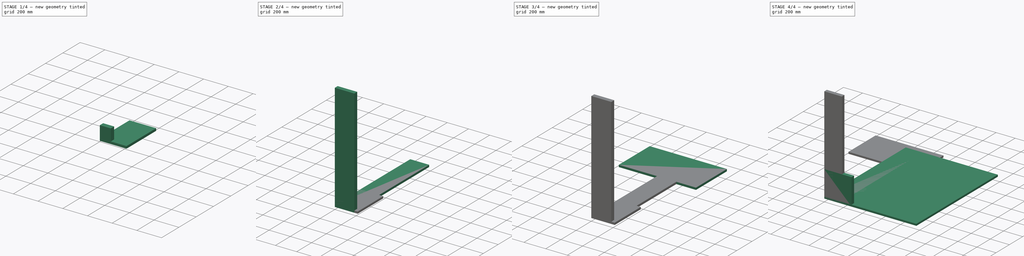
[diagram: build sequence overview — one tinted view per stage of 4, left to right]
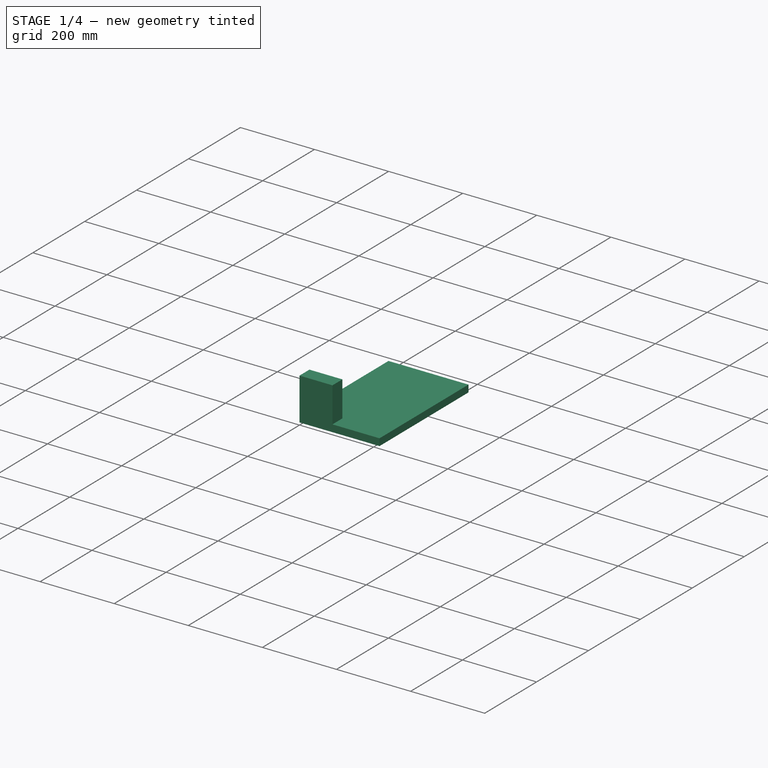
[diagram: stage 1 of 4 — iso view after this stage's code; geometry added in this stage tinted green]
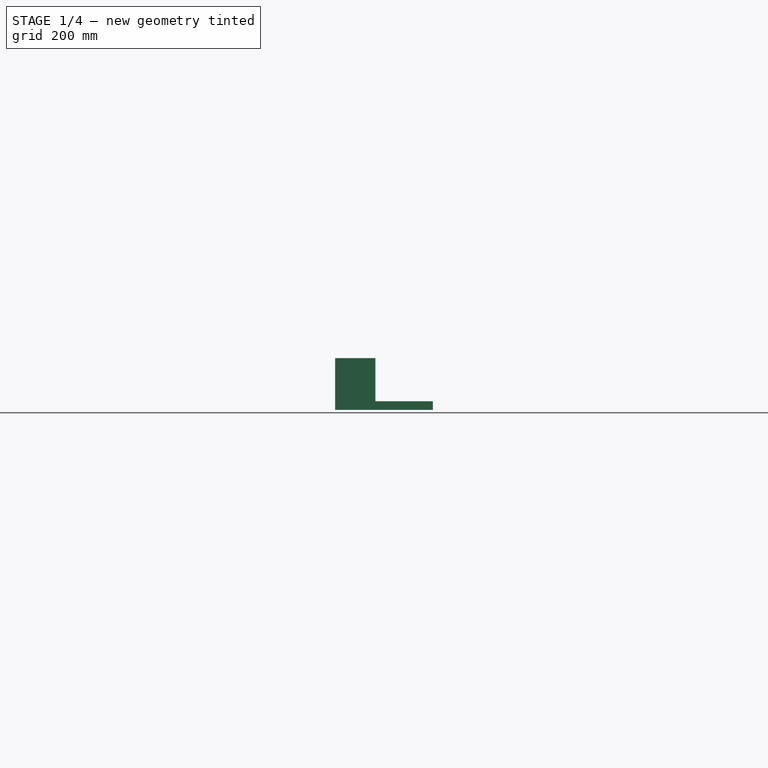
[diagram: stage 1 of 4 — front view after this stage's code; geometry added in this stage tinted green]
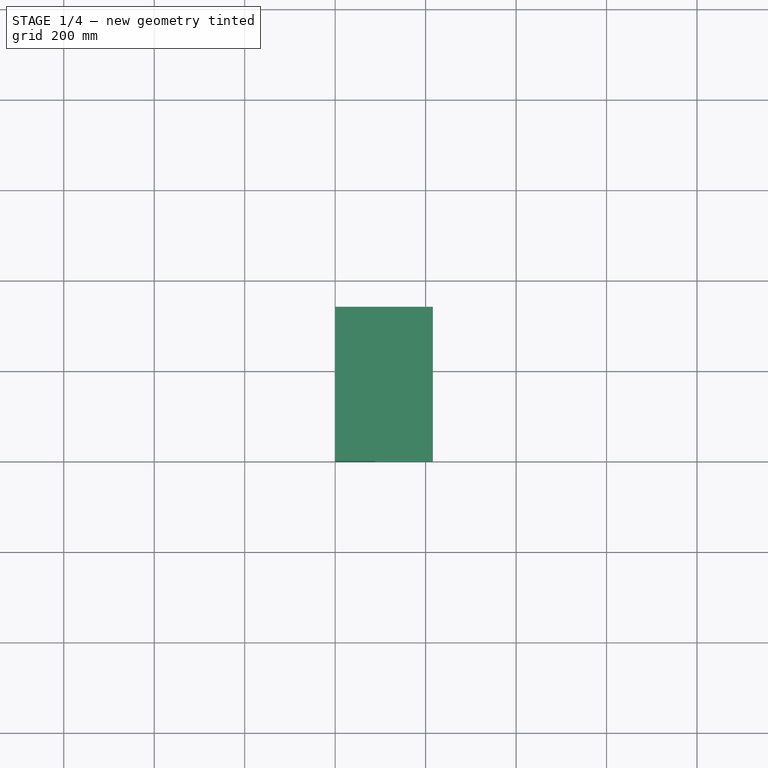
[diagram: stage 1 of 4 — top view after this stage's code; geometry added in this stage tinted green]
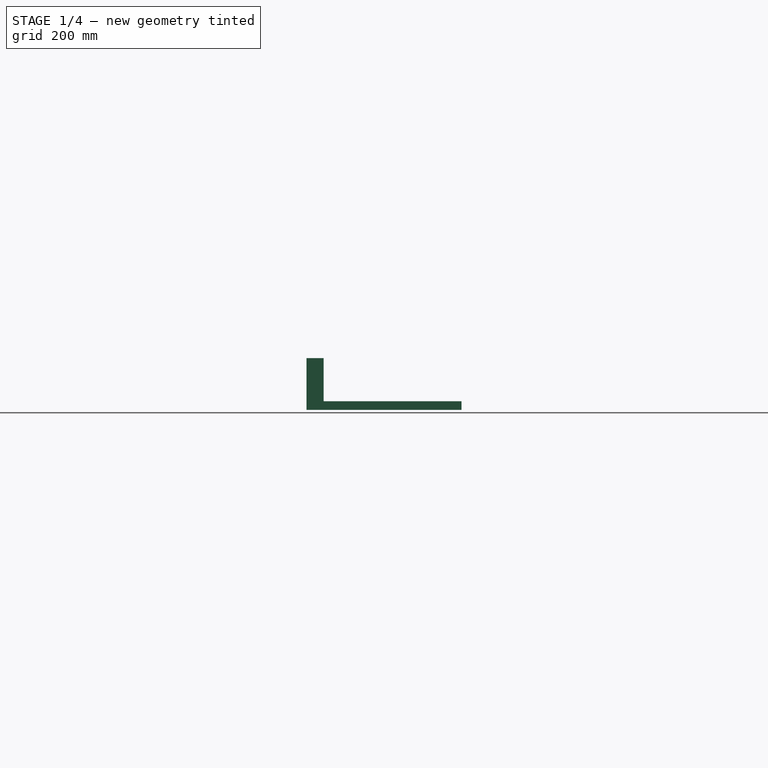
[diagram: stage 1 of 4 — right view after this stage's code; geometry added in this stage tinted green]
FCSTD DOCUMENT  (FreeCAD 2023.131R26244 +5365 (Git))
Label: flightDeck-rough
License: All rights reserved
LicenseURL: http://en.wikipedia.org/wiki/All_rights_reserved
objects: Sketcher::SketchObject×24, PartDesign::Body×18, App::Link×16, PartDesign::Pad×12, App::FeaturePython×10, Part::FeaturePython×10, Part::SubShapeBinder×1
note: 108 computed .brp shape members not serialized (recipe doc carries the construction recipe); baked Part::Feature solids carry a one-line shape summary decoded from their .brp

FEATURE [PartDesign::Body] Body014  label="panel-controlsDeck"
  AutoGroupSolids = false
  ClaimAllChildren = false
  ExportMode = 0
  FixShape = 1
  Group = -> [Sketch020,Pad008]
  InvalidShape = false
  Origin = -> Origin014
  Tip = -> Pad008
  TreeRank = 216
  ValidateShape = false
  _ExportChildren = -> [Pad008]
  _GroupVersion = 1
FEATURE [App::Link] Link013  label="Link013(panel-controlsDeck)"
  AutoLinkLabel = true
  AutoPlacement = true
  LinkPlacement = pos=(-393.7,-38.1001,482.6) rot=(0,0,1;0rad)
  LinkedObject = -> Body014
  Placement = pos=(-393.7,-38.1001,482.6) rot=(0,0,1;0rad)
  SyncGroupVisibility = false
  TreeRank = 219
  _LinkVersion = 1
FEATURE [App::Link] Link014  label="Link014(panel-controlsDeck)"
  AutoLinkLabel = true
  AutoPlacement = true
  LinkPlacement = pos=(381,-38.1002,482.6) rot=(0,0,1;0rad)
  LinkedObject = -> Body014
  Placement = pos=(381,-38.1002,482.6) rot=(0,0,1;0rad)
  SyncGroupVisibility = false
  TreeRank = 220
  _LinkVersion = 1
FEATURE [Sketcher::SketchObject] Sketch021
  ArcFitTolerance = 1e-06
  AttachmentSupport = -> [XY_Plane015]
  ExternalBSplineMaxDegree = 5
  ExternalBSplineTolerance = 0.0001
  FixShape = 1
  FullyConstrained = true
  InternalTolerance = 1e-06
  InvalidShape = false
  MakeInternals = false
  MapMode = 5
  Support = -> [XY_Plane015]
  TreeRank = 231
  ValidateShape = false
  sketch-geometry (4):
    g0: LineSegment StartX=0 StartY=0 StartZ=0 EndX=215.9 EndY=0 EndZ=0
    g1: LineSegment StartX=215.9 StartY=0 StartZ=0 EndX=215.9 EndY=342.9 EndZ=0
    g2: LineSegment StartX=215.9 StartY=342.9 StartZ=0 EndX=0 EndY=342.9 EndZ=0
    g3: LineSegment StartX=0 StartY=342.9 StartZ=0 EndX=0 EndY=0 EndZ=0
  constraints (11):
    c: Coincident(g0,g1)
    c: Coincident(g1,g2)
    c: Coincident(g2,g3)
    c: Coincident(g3,g0)
    c: Horizontal(g0)
    c: Horizontal(g2)
    c: Vertical(g1)
    c: Vertical(g3)
    c: Coincident(g0,g-1)
    c: DistanceY(g3,g3) = 342.9
    c: DistanceX(g0,g0) = 215.9
FEATURE [PartDesign::Pad] Pad009
  AddSubType = 0
  AlongSketchNormal = false
  AutoTaperInnerAngle = true
  CheckUpToFaceLimits = true
  ClaimChildren = false
  Direction = (0,0,1)
  Fit = 0
  FitJoin = 0
  FixShape = 1
  InnerFit = 0
  InnerFitJoin = 0
  InvalidShape = false
  Length = 19.05
  Length2 = 100
  Linearize = true
  NewSolid = false
  Profile = -> Sketch021
  Refine = true
  Suppress = false
  TaperInnerAngle = 0
  TaperInnerAngleRev = 0
  TreeRank = 232
  Type = 0
  ValidateShape = false
  _ProfileBasedVersion = 1
FEATURE [PartDesign::Body] Body015  label="panel-sidestick"
  AutoGroupSolids = false
  ClaimAllChildren = false
  ExportMode = 0
  FixShape = 1
  Group = -> [Sketch021,Pad009]
  InvalidShape = false
  Origin = -> Origin015
  Placement = pos=(381,352.292,552.74) rot=(0,0,1;0rad)
  Tip = -> Pad009
  TreeRank = 248
  ValidateShape = false
  _ExportChildren = -> [Pad009]
  _GroupVersion = 1
FEATURE [App::Link] Link015  label="Link015(panel-sidestick)"
  AutoLinkLabel = true
  AutoPlacement = true
  LinkPlacement = pos=(381,358.642,628.939) rot=(-1,0,0;0.174533rad)
  LinkedObject = -> Body015
  Placement = pos=(381,358.642,628.939) rot=(-1,0,0;0.174533rad)
  SyncGroupVisibility = false
  TreeRank = 233
  _LinkVersion = 1
FEATURE [Sketcher::SketchObject] Sketch022
  ArcFitTolerance = 1e-06
  AttachmentSupport = -> [XY_Plane016]
  ExternalBSplineMaxDegree = 5
  ExternalBSplineTolerance = 0.0001
  FixShape = 1
  FullyConstrained = true
  InternalTolerance = 1e-06
  InvalidShape = false
  MakeInternals = false
  MapMode = 5
  Support = -> [XY_Plane016]
  TreeRank = 244
  ValidateShape = false
  sketch-geometry (4):
    g0: LineSegment StartX=0 StartY=0 StartZ=0 EndX=88.9 EndY=0 EndZ=0
    g1: LineSegment StartX=88.9 StartY=0 StartZ=0 EndX=88.9 EndY=38.1 EndZ=0
    g2: LineSegment StartX=88.9 StartY=38.1 StartZ=0 EndX=0 EndY=38.1 EndZ=0
    g3: LineSegment StartX=0 StartY=38.1 StartZ=0 EndX=0 EndY=0 EndZ=0
  constraints (11):
    c: Coincident(g0,g1)
    c: Coincident(g1,g2)
    c: Coincident(g2,g3)
    c: Coincident(g3,g0)
    c: Horizontal(g0)
    c: Horizontal(g2)
    c: Vertical(g1)
    c: Vertical(g3)
    c: Coincident(g0,g-1)
    c: DistanceY(g3,g3) = 38.1
    c: DistanceX(g0,g0) = 88.9
FEATURE [PartDesign::Pad] Pad010
  AddSubType = 0
  AlongSketchNormal = false
  AutoTaperInnerAngle = true
  CheckUpToFaceLimits = true
  ClaimChildren = false
  Direction = (0,0,1)
  Fit = 0
  FitJoin = 0
  FixShape = 1
  InnerFit = 0
  InnerFitJoin = 0
  InvalidShape = false
  Length = 114.3
  Length2 = 100
  Linearize = true
  NewSolid = false
  Profile = -> Sketch022
  Refine = true
  Suppress = false
  TaperInnerAngle = 0
  TaperInnerAngleRev = 0
  TreeRank = 245
  Type = 0
  ValidateShape = false
  _ProfileBasedVersion = 1
FEATURE [PartDesign::Body] Body016  label="timber-sideStick"
  AutoGroupSolids = false
  ClaimAllChildren = false
  ExportMode = 0
  FixShape = 1
  Group = -> [Sketch022,Pad010]
  InvalidShape = false
  Origin = -> Origin016
  Placement = pos=(425.45,361.95,501.65) rot=(0,0,1;0rad)
  Tip = -> Pad010
  TreeRank = 247
  ValidateShape = false
  _ExportChildren = -> [Pad010]
  _GroupVersion = 1
FEATURE [Sketcher::SketchObject] Sketch023
  ArcFitTolerance = 1e-06
  AttachmentSupport = -> [XY_Plane017]
  ExternalBSplineMaxDegree = 5
  ExternalBSplineTolerance = 0.0001
  FixShape = 1
  FullyConstrained = true
  InternalTolerance = 1e-06
  InvalidShape = false
  MakeInternals = false
  MapMode = 5
  Support = -> [XY_Plane017]
  TreeRank = 259
  ValidateShape = false
  sketch-geometry (4):
    g0: LineSegment StartX=0 StartY=0 StartZ=0 EndX=88.9 EndY=0 EndZ=0
    g1: LineSegment StartX=88.9 StartY=0 StartZ=0 EndX=88.9 EndY=38.1 EndZ=0
    g2: LineSegment StartX=88.9 StartY=38.1 StartZ=0 EndX=0 EndY=38.1 EndZ=0
    g3: LineSegment StartX=0 StartY=38.1 StartZ=0 EndX=0 EndY=0 EndZ=0
  constraints (11):
    c: Coincident(g0,g1)
    c: Coincident(g1,g2)
    c: Coincident(g2,g3)
    c: Coincident(g3,g0)
    c: Horizontal(g0)
    c: Horizontal(g2)
    c: Vertical(g1)
    c: Vertical(g3)
    c: Coincident(g0,g-1)
    c: DistanceY(g3,g3) = 38.1
    c: DistanceX(g0,g0) = 88.9
FEATURE [PartDesign::Pad] Pad011
  AddSubType = 0
  AlongSketchNormal = false
  AutoTaperInnerAngle = true
  CheckUpToFaceLimits = true
  ClaimChildren = false
  Direction = (0,0,1)
  Fit = 0
  FitJoin = 0
  FixShape = 1
  InnerFit = 0
  InnerFitJoin = 0
  InvalidShape = false
  Length = 69.85
  Length2 = 100
  Linearize = true
  NewSolid = false
  Profile = -> Sketch023
  Refine = true
  Suppress = false
  TaperInnerAngle = 0
  TaperInnerAngleRev = 0
  TreeRank = 260
  Type = 0
  ValidateShape = false
  _ProfileBasedVersion = 1
FEATURE [PartDesign::Body] Body017  label="timber-sideStick-front"
  AutoGroupSolids = false
  ClaimAllChildren = false
  ExportMode = 0
  FixShape = 1
  Group = -> [Sketch023,Pad011]
  InvalidShape = false
  Origin = -> Origin017
  Placement = pos=(444.5,654.05,501.65) rot=(0,0,1;0rad)
  Tip = -> Pad011
  TreeRank = 258
  ValidateShape = false
  _ExportChildren = -> [Pad011]
  _GroupVersion = 1
FEATURE [Part::FeaturePython] Parts001  # WARN: FeaturePython — macro-defined, semantics opaque (R4)
  FixShape = 1
  Group = -> [Link,Link001,Link002,Link003,Body007,Body008,Link004,Link005,Body012,Link011,Link012,Link013,Link014,Link015,Body016,Body017]
  GroupMode = 0
  InvalidShape = false
  TreeRank = 90
  ValidateShape = false
  _LinkVersion = 1
FEATURE [Part::FeaturePython] Assembly001  label="flightDeck-box_floorToChair-Assembly"  # WARN: FeaturePython — macro-defined, semantics opaque (R4)
  AutoRelax = true
  BuildShape = 0
  FixShape = 1
  Freeze = false
  Group = -> [Constraints001,Elements001,Parts001]
  InvalidShape = false
  Placement = pos=(-127,-203.2,-482.6) rot=(0,0,1;0rad)
  TreeRank = 91
  ValidateShape = false
  Verbose = false
  _LinkVersion = 1
  _SolverType = 1
  _Version = 1
FEATURE [Part::FeaturePython] Parts002  # WARN: FeaturePython — macro-defined, semantics opaque (R4)
  FixShape = 1
  Group = -> [Assembly,Assembly001,Assembly003,Assembly004]
  GroupMode = 0
  InvalidShape = false
  TreeRank = 101
  ValidateShape = false
  _LinkVersion = 1
FEATURE [Part::FeaturePython] Assembly002  label="flightDeck-Assembly"  # WARN: FeaturePython — macro-defined, semantics opaque (R4)
  AutoRelax = true
  BuildShape = 0
  FixShape = 1
  Freeze = false
  Group = -> [Constraints002,Elements002,Parts002]
  InvalidShape = false
  TreeRank = 102
  ValidateShape = false
  Verbose = false
  _LinkVersion = 1
  _SolverType = 1
  _Version = 1
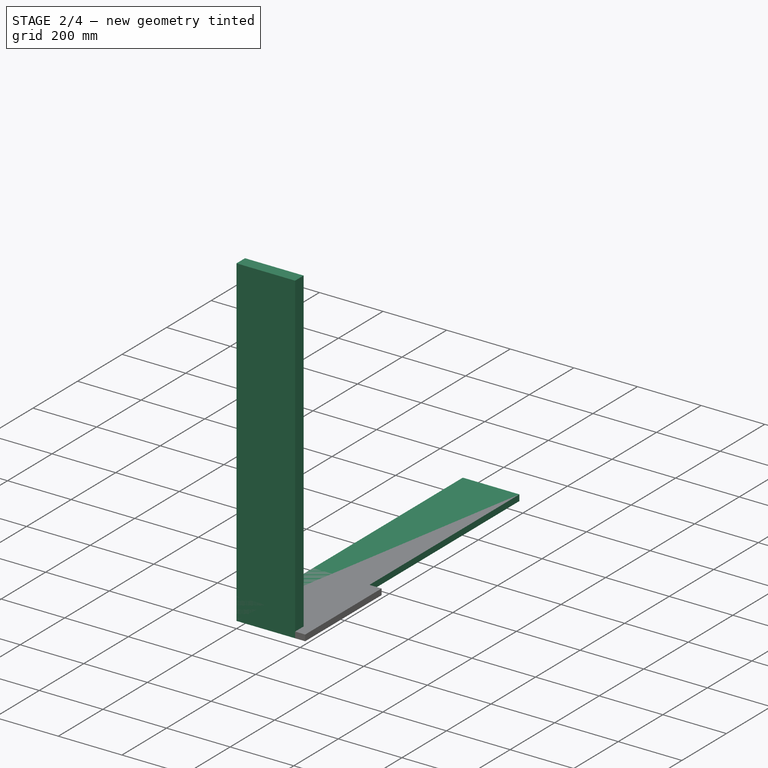
[diagram: stage 2 of 4 — iso view after this stage's code; geometry added in this stage tinted green]
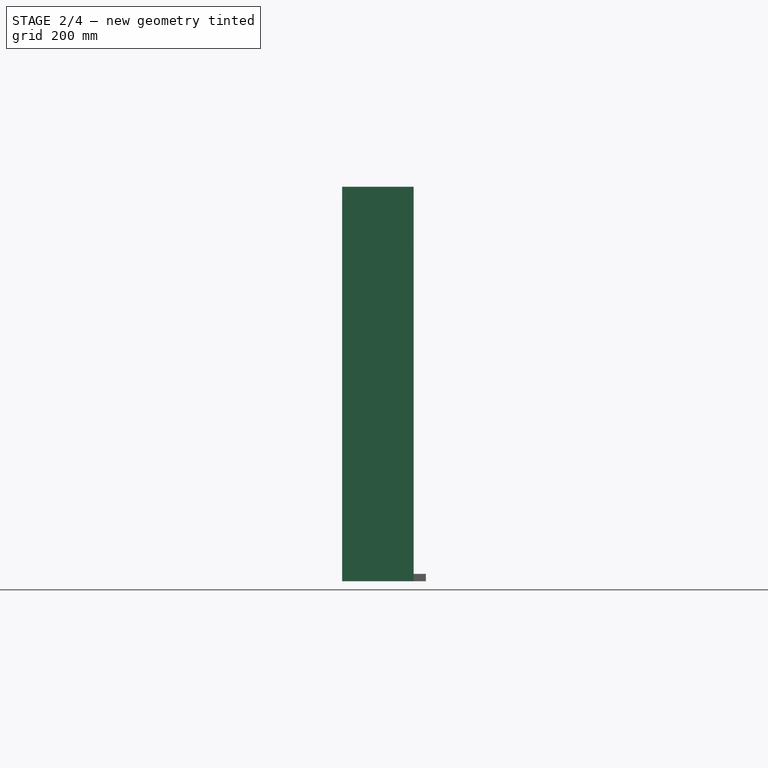
[diagram: stage 2 of 4 — front view after this stage's code; geometry added in this stage tinted green]
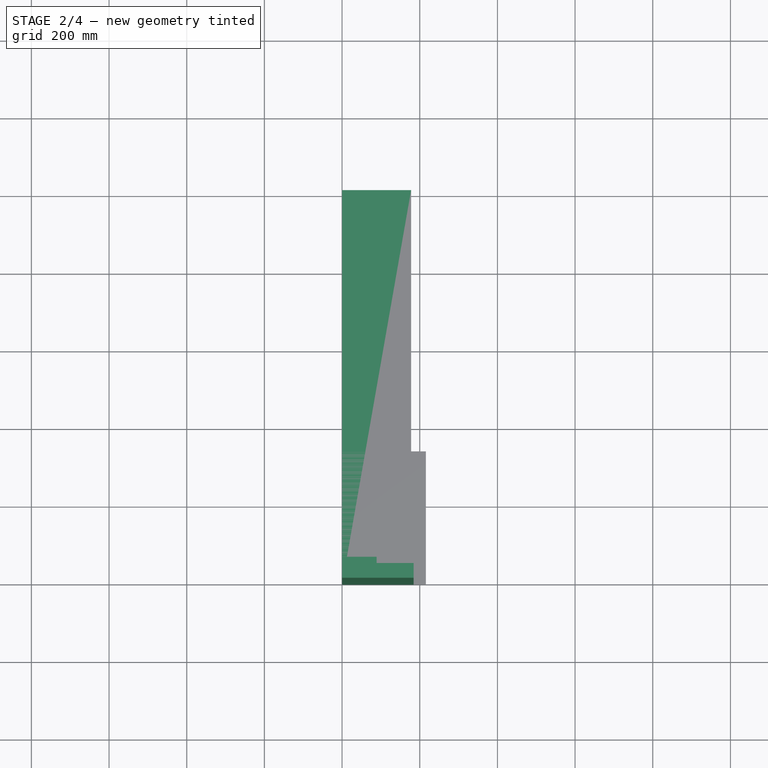
[diagram: stage 2 of 4 — top view after this stage's code; geometry added in this stage tinted green]
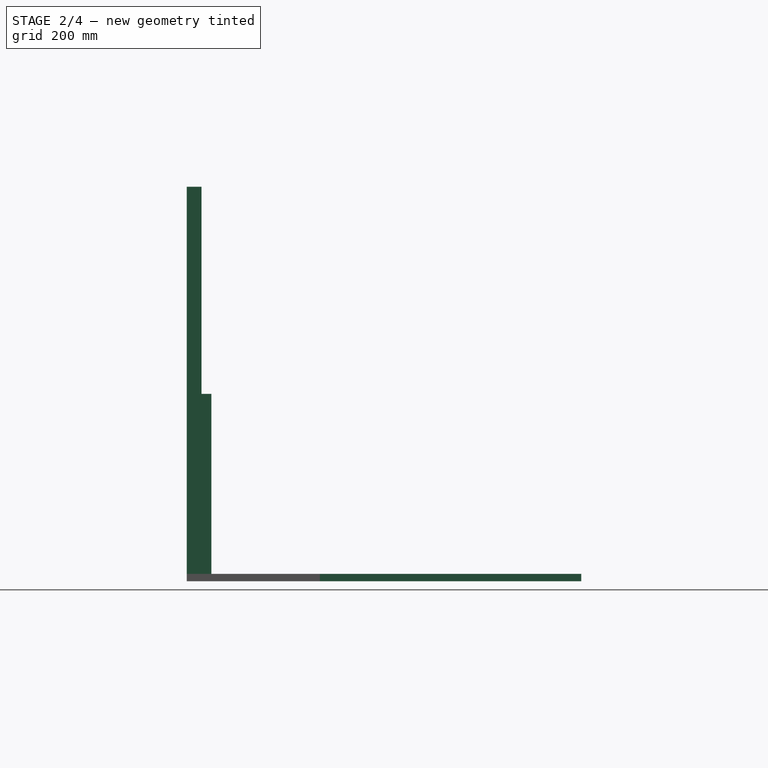
[diagram: stage 2 of 4 — right view after this stage's code; geometry added in this stage tinted green]
FEATURE [PartDesign::Body] Body011  label="timber-floorToWheel"
  AutoGroupSolids = false
  ClaimAllChildren = false
  ExportMode = 0
  FixShape = 1
  Group = -> [Sketch017,Pad005]
  InvalidShape = false
  Origin = -> Origin011
  Tip = -> Pad005
  TreeRank = 171
  ValidateShape = false
  _ExportChildren = -> [Pad005]
  _GroupVersion = 1
FEATURE [App::Link] Link008  label="Link008(timber-floorToWheel)"
  AutoLinkLabel = true
  AutoPlacement = true
  LinkPlacement = pos=(0,171.45,0) rot=(0,0,1;0rad)
  LinkedObject = -> Body011
  Placement = pos=(0,171.45,0) rot=(0,0,1;0rad)
  SyncGroupVisibility = false
  TreeRank = 174
  _LinkVersion = 1
FEATURE [App::FeaturePython] Constraints004  # WARN: FeaturePython — macro-defined, semantics opaque (R4)
  TreeRank = 176
  _LinkVersion = 1
  _Version = 1
FEATURE [App::FeaturePython] Elements004  # WARN: FeaturePython — macro-defined, semantics opaque (R4)
  TreeRank = 177
  _LinkVersion = 1
FEATURE [App::Link] Link009  label="Link009(timber-floorToWheel)"
  AutoLinkLabel = true
  AutoPlacement = true
  LinkPlacement = pos=(-9.15527e-05,495.3,1.52588e-05) rot=(0,0,1;0rad)
  LinkedObject = -> Body011
  Placement = pos=(-9.15527e-05,495.3,1.52588e-05) rot=(0,0,1;0rad)
  SyncGroupVisibility = false
  TreeRank = 179
  _LinkVersion = 1
FEATURE [App::Link] Link010  label="Link010(timber-floorToWheel)"
  AutoLinkLabel = true
  AutoPlacement = true
  LinkPlacement = pos=(127,571.5,361.95) rot=(0.57735,-0.57735,0.57735;2.0944rad)
  LinkedObject = -> Body011
  Placement = pos=(127,571.5,361.95) rot=(0.57735,-0.57735,0.57735;2.0944rad)
  SyncGroupVisibility = false
  TreeRank = 180
  _LinkVersion = 1
FEATURE [Part::FeaturePython] Parts004  # WARN: FeaturePython — macro-defined, semantics opaque (R4)
  FixShape = 1
  Group = -> [Link008,Link009,Link010]
  GroupMode = 0
  InvalidShape = false
  TreeRank = 178
  ValidateShape = false
  _LinkVersion = 1
FEATURE [Part::FeaturePython] Assembly004  label="flightDeck-floorToWheels"  # WARN: FeaturePython — macro-defined, semantics opaque (R4)
  AutoRelax = true
  BuildShape = 0
  FixShape = 1
  Freeze = false
  Group = -> [Constraints004,Elements004,Parts004]
  InvalidShape = false
  Placement = pos=(336.55,-31.7499,-482.6) rot=(-0.57735,0.57735,-0.57735;4.18879rad)
  TreeRank = 175
  ValidateShape = false
  Verbose = false
  _LinkVersion = 1
  _SolverType = 1
  _Version = 1
FEATURE [Sketcher::SketchObject] Sketch018
  ArcFitTolerance = 1e-06
  AttachmentSupport = -> [XY_Plane012]
  ExternalBSplineMaxDegree = 5
  ExternalBSplineTolerance = 0.0001
  FixShape = 1
  FullyConstrained = true
  InternalTolerance = 1e-06
  InvalidShape = false
  MakeInternals = false
  MapMode = 5
  Support = -> [XY_Plane012]
  TreeRank = 191
  ValidateShape = false
  sketch-geometry (4):
    g0: LineSegment StartX=0 StartY=0 StartZ=0 EndX=88.9 EndY=0 EndZ=0
    g1: LineSegment StartX=88.9 StartY=0 StartZ=0 EndX=88.9 EndY=63.5 EndZ=0
    g2: LineSegment StartX=88.9 StartY=63.5 StartZ=0 EndX=0 EndY=63.5 EndZ=0
    g3: LineSegment StartX=0 StartY=63.5 StartZ=0 EndX=0 EndY=0 EndZ=0
  constraints (11):
    c: Coincident(g0,g1)
    c: Coincident(g1,g2)
    c: Coincident(g2,g3)
    c: Coincident(g3,g0)
    c: Horizontal(g0)
    c: Horizontal(g2)
    c: Vertical(g1)
    c: Vertical(g3)
    c: Coincident(g0,g-1)
    c: DistanceX(g0,g0) = 88.9
    c: DistanceY(g3,g3) = 63.5
FEATURE [PartDesign::Pad] Pad006
  AddSubType = 0
  AlongSketchNormal = false
  AutoTaperInnerAngle = true
  CheckUpToFaceLimits = true
  ClaimChildren = false
  Direction = (0,0,1)
  Fit = 0
  FitJoin = 0
  FixShape = 1
  InnerFit = 0
  InnerFitJoin = 0
  InvalidShape = false
  Length = 482.6
  Length2 = 100
  Linearize = true
  NewSolid = false
  Profile = -> Sketch018
  Refine = true
  Suppress = false
  TaperInnerAngle = 0
  TaperInnerAngleRev = 0
  TreeRank = 192
  Type = 0
  ValidateShape = false
  _ProfileBasedVersion = 1
FEATURE [PartDesign::Body] Body012  label="timber-tilt"
  AutoGroupSolids = false
  ClaimAllChildren = false
  ExportMode = 0
  FixShape = 1
  Group = -> [Sketch018,Pad006]
  InvalidShape = false
  Origin = -> Origin012
  Placement = pos=(355.6,660.4,298.45) rot=(0.57735,-0.57735,-0.57735;2.0944rad)
  Tip = -> Pad006
  TreeRank = 190
  ValidateShape = false
  _ExportChildren = -> [Pad006]
  _GroupVersion = 1
FEATURE [Sketcher::SketchObject] Sketch019
  ArcFitTolerance = 1e-06
  AttachmentSupport = -> [XY_Plane013]
  ExternalBSplineMaxDegree = 5
  ExternalBSplineTolerance = 0.0001
  FixShape = 1
  FullyConstrained = true
  InternalTolerance = 1e-06
  InvalidShape = false
  MakeInternals = false
  MapMode = 5
  Support = -> [XY_Plane013]
  TreeRank = 203
  ValidateShape = false
  sketch-geometry (4):
    g0: LineSegment StartX=0 StartY=0 StartZ=0 EndX=184.15 EndY=0 EndZ=0
    g1: LineSegment StartX=184.15 StartY=0 StartZ=0 EndX=184.15 EndY=38.1 EndZ=0
    g2: LineSegment StartX=184.15 StartY=38.1 StartZ=0 EndX=0 EndY=38.1 EndZ=0
    g3: LineSegment StartX=0 StartY=38.1 StartZ=0 EndX=0 EndY=0 EndZ=0
  constraints (11):
    c: Coincident(g0,g1)
    c: Coincident(g1,g2)
    c: Coincident(g2,g3)
    c: Coincident(g3,g0)
    c: Horizontal(g0)
    c: Horizontal(g2)
    c: Vertical(g1)
    c: Vertical(g3)
    c: Coincident(g0,g-1)
    c: DistanceY(g3,g3) = 38.1
    c: DistanceX(g0,g0) = 184.15
FEATURE [PartDesign::Pad] Pad007
  AddSubType = 0
  AlongSketchNormal = false
  AutoTaperInnerAngle = true
  CheckUpToFaceLimits = true
  ClaimChildren = false
  Direction = (0,0,1)
  Fit = 0
  FitJoin = 0
  FixShape = 1
  InnerFit = 0
  InnerFitJoin = 0
  InvalidShape = false
  Length = 1016
  Length2 = 100
  Linearize = true
  NewSolid = false
  Profile = -> Sketch019
  Refine = true
  Suppress = false
  TaperInnerAngle = 0
  TaperInnerAngleRev = 0
  TreeRank = 204
  Type = 0
  ValidateShape = false
  _ProfileBasedVersion = 1
FEATURE [PartDesign::Body] Body013  label="timber-controlsDeck"
  AutoGroupSolids = false
  ClaimAllChildren = false
  ExportMode = 0
  FixShape = 1
  Group = -> [Sketch019,Pad007]
  InvalidShape = false
  Origin = -> Origin013
  Tip = -> Pad007
  TreeRank = 202
  ValidateShape = false
  _ExportChildren = -> [Pad007]
  _GroupVersion = 1
FEATURE [App::Link] Link011  label="Link011(timber-controlsDeck)"
  AutoLinkLabel = true
  AutoPlacement = true
  LinkPlacement = pos=(457.2,-38.1,298.451) rot=(0.57735,0.57735,0.57735;4.18879rad)
  LinkedObject = -> Body013
  Placement = pos=(457.2,-38.1,298.451) rot=(0.57735,0.57735,0.57735;4.18879rad)
  SyncGroupVisibility = false
  TreeRank = 205
  _LinkVersion = 1
FEATURE [App::Link] Link012  label="Link012(timber-controlsDeck)"
  AutoLinkLabel = true
  AutoPlacement = true
  LinkPlacement = pos=(-336.55,-38.1001,298.45) rot=(0.57735,0.57735,0.57735;4.18879rad)
  LinkedObject = -> Body013
  Placement = pos=(-336.55,-38.1001,298.45) rot=(0.57735,0.57735,0.57735;4.18879rad)
  SyncGroupVisibility = false
  TreeRank = 206
  _LinkVersion = 1
FEATURE [Sketcher::SketchObject] Sketch020
  ArcFitTolerance = 1e-06
  AttachmentSupport = -> [XY_Plane014]
  ExternalBSplineMaxDegree = 5
  ExternalBSplineTolerance = 0.0001
  FixShape = 1
  FullyConstrained = true
  InternalTolerance = 1e-06
  InvalidShape = false
  MakeInternals = false
  MapMode = 5
  Support = -> [XY_Plane014]
  TreeRank = 217
  ValidateShape = false
  sketch-geometry (4):
    g0: LineSegment StartX=0 StartY=0 StartZ=0 EndX=177.8 EndY=0 EndZ=0
    g1: LineSegment StartX=177.8 StartY=0 StartZ=0 EndX=177.8 EndY=1016 EndZ=0
    g2: LineSegment StartX=177.8 StartY=1016 StartZ=0 EndX=0 EndY=1016 EndZ=0
    g3: LineSegment StartX=0 StartY=1016 StartZ=0 EndX=0 EndY=0 EndZ=0
  constraints (11):
    c: Coincident(g0,g1)
    c: Coincident(g1,g2)
    c: Coincident(g2,g3)
    c: Coincident(g3,g0)
    c: Horizontal(g0)
    c: Horizontal(g2)
    c: Vertical(g1)
    c: Vertical(g3)
    c: Coincident(g0,g-1)
    c: DistanceX(g0,g0) = 177.8
    c: DistanceY(g3,g3) = 1016
FEATURE [PartDesign::Pad] Pad008
  AddSubType = 0
  AlongSketchNormal = false
  AutoTaperInnerAngle = true
  CheckUpToFaceLimits = true
  ClaimChildren = false
  Direction = (0,0,1)
  Fit = 0
  FitJoin = 0
  FixShape = 1
  InnerFit = 0
  InnerFitJoin = 0
  InvalidShape = false
  Length = 19.05
  Length2 = 100
  Linearize = true
  NewSolid = false
  Profile = -> Sketch020
  Refine = true
  Suppress = false
  TaperInnerAngle = 0
  TaperInnerAngleRev = 0
  TreeRank = 218
  Type = 0
  ValidateShape = false
  _ProfileBasedVersion = 1
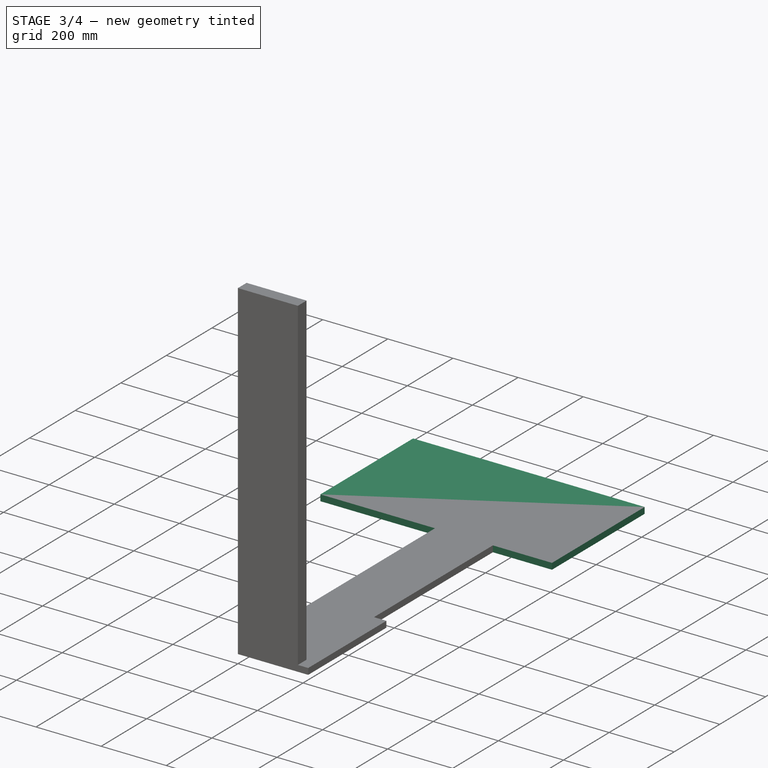
[diagram: stage 3 of 4 — iso view after this stage's code; geometry added in this stage tinted green]
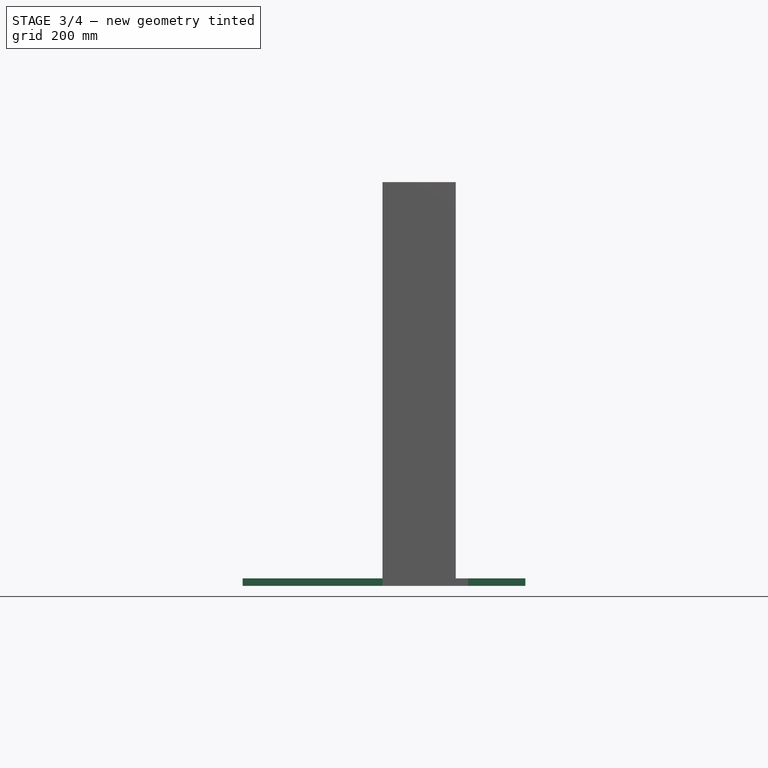
[diagram: stage 3 of 4 — front view after this stage's code; geometry added in this stage tinted green]
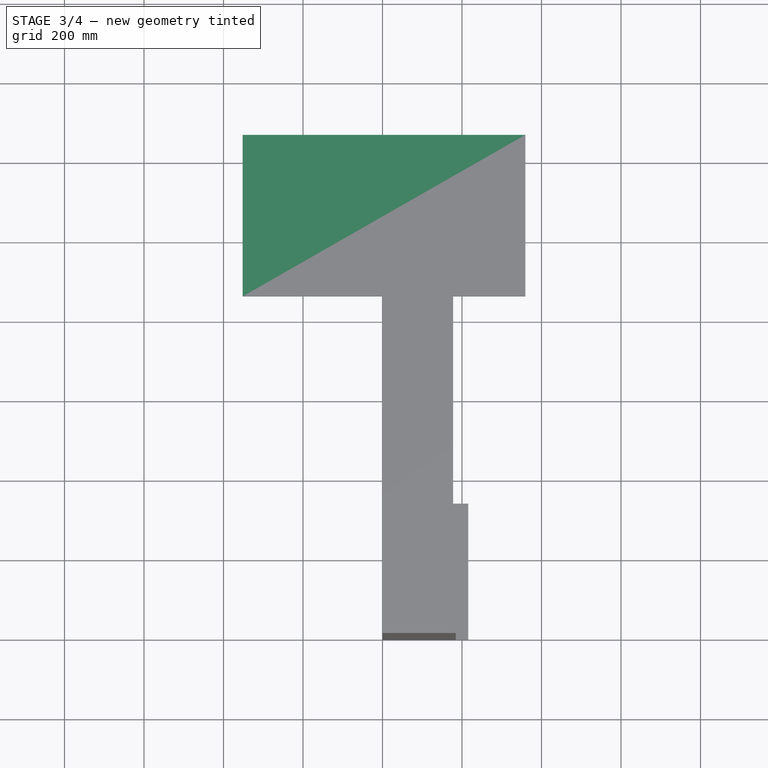
[diagram: stage 3 of 4 — top view after this stage's code; geometry added in this stage tinted green]
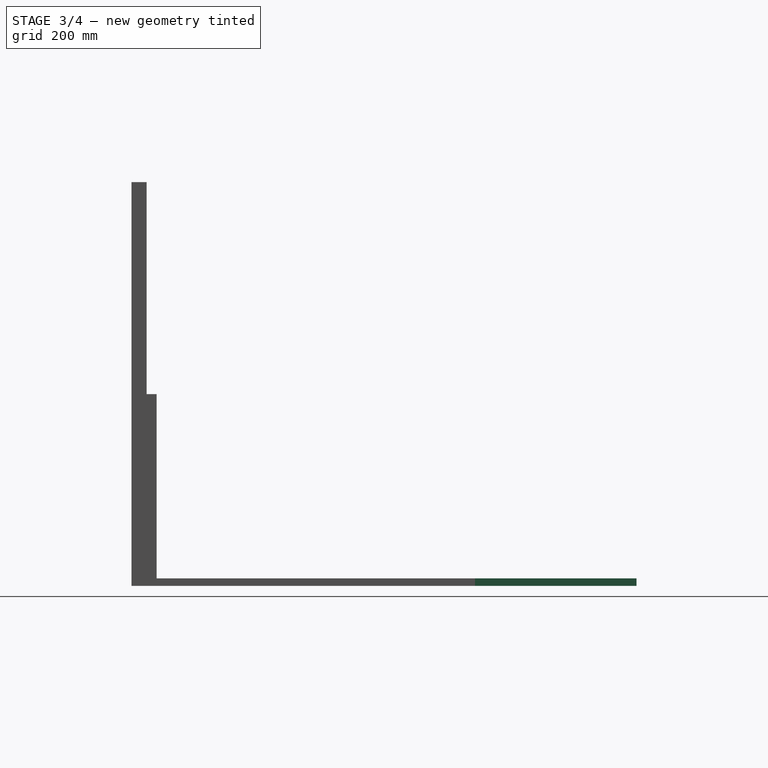
[diagram: stage 3 of 4 — right view after this stage's code; geometry added in this stage tinted green]
FEATURE [PartDesign::Body] Body008  label="panel-chairFloor"
  AutoGroupSolids = false
  ClaimAllChildren = false
  ExportMode = 0
  FixShape = 1
  Group = -> [Sketch014,Pad002]
  InvalidShape = false
  Origin = -> Origin008
  Placement = pos=(-355.6,-127,-19.0502) rot=(0,0,1;0rad)
  Tip = -> Pad002
  TreeRank = 125
  ValidateShape = false
  _ExportChildren = -> [Pad002]
  _GroupVersion = 1
FEATURE [App::Link] Link004  label="Link004(timber-floorToChair)"
  AutoLinkLabel = true
  AutoPlacement = true
  LinkPlacement = pos=(-283.329,370.347,0) rot=(0,0,1;1.5708rad)
  LinkedObject = -> Body006
  Placement = pos=(-283.329,370.347,0) rot=(0,0,1;1.5708rad)
  SyncGroupVisibility = false
  TreeRank = 129
  _LinkVersion = 1
FEATURE [App::Link] Link005  label="Link005(timber-floorToChair)"
  AutoLinkLabel = true
  AutoPlacement = true
  LinkPlacement = pos=(491.911,643.821,-9.46045e-05) rot=(0,0,-1;1.5708rad)
  LinkedObject = -> Body006
  Placement = pos=(491.911,643.821,-9.46045e-05) rot=(0,0,-1;1.5708rad)
  SyncGroupVisibility = false
  TreeRank = 130
  _LinkVersion = 1
FEATURE [Sketcher::SketchObject] Sketch015
  ArcFitTolerance = 1e-06
  AttachmentSupport = -> [XY_Plane009]
  ExternalBSplineMaxDegree = 5
  ExternalBSplineTolerance = 0.0001
  FixShape = 1
  FullyConstrained = true
  InternalTolerance = 1e-06
  InvalidShape = false
  MakeInternals = false
  MapMode = 5
  Support = -> [XY_Plane009]
  TreeRank = 141
  ValidateShape = false
  sketch-geometry (4):
    g0: LineSegment StartX=0 StartY=0 StartZ=0 EndX=88.9 EndY=0 EndZ=0
    g1: LineSegment StartX=88.9 StartY=0 StartZ=0 EndX=88.9 EndY=38.1 EndZ=0
    g2: LineSegment StartX=88.9 StartY=38.1 StartZ=0 EndX=0 EndY=38.1 EndZ=0
    g3: LineSegment StartX=0 StartY=38.1 StartZ=0 EndX=0 EndY=0 EndZ=0
  constraints (11):
    c: Coincident(g0,g1)
    c: Coincident(g1,g2)
    c: Coincident(g2,g3)
    c: Coincident(g3,g0)
    c: Horizontal(g0)
    c: Horizontal(g2)
    c: Vertical(g1)
    c: Vertical(g3)
    c: Coincident(g0,g-1)
    c: DistanceY(g3,g3) = 38.1
    c: DistanceX(g0,g0) = 88.9
FEATURE [PartDesign::Pad] Pad003
  AddSubType = 0
  AlongSketchNormal = false
  AutoTaperInnerAngle = true
  CheckUpToFaceLimits = true
  ClaimChildren = false
  Direction = (0,0,1)
  Fit = 0
  FitJoin = 0
  FixShape = 1
  InnerFit = 0
  InnerFitJoin = 0
  InvalidShape = false
  Length = 812.8
  Length2 = 100
  Linearize = true
  NewSolid = false
  Profile = -> Sketch015
  Refine = true
  Suppress = false
  TaperInnerAngle = 0
  TaperInnerAngleRev = 0
  TreeRank = 142
  Type = 0
  ValidateShape = false
  _ProfileBasedVersion = 1
FEATURE [PartDesign::Body] Body009  label="timber-floorToPedals"
  AutoGroupSolids = false
  ClaimAllChildren = false
  ExportMode = 0
  FixShape = 1
  Group = -> [Sketch015,Pad003]
  InvalidShape = false
  Origin = -> Origin009
  Tip = -> Pad003
  TreeRank = 147
  ValidateShape = false
  _ExportChildren = -> [Pad003]
  _GroupVersion = 1
FEATURE [App::FeaturePython] Constraints003  # WARN: FeaturePython — macro-defined, semantics opaque (R4)
  TreeRank = 144
  _LinkVersion = 1
  _Version = 1
FEATURE [App::FeaturePython] Elements003  # WARN: FeaturePython — macro-defined, semantics opaque (R4)
  TreeRank = 145
  _LinkVersion = 1
FEATURE [App::Link] Link006  label="Link006(timber-floorToPedals)"
  AutoLinkLabel = true
  AutoPlacement = true
  LinkPlacement = pos=(0,101.6,-25.4) rot=(0,0,1;0rad)
  LinkedObject = -> Body009
  Placement = pos=(0,101.6,-25.4) rot=(0,0,1;0rad)
  SyncGroupVisibility = false
  TreeRank = 148
  _LinkVersion = 1
FEATURE [Sketcher::SketchObject] Sketch016
  ArcFitTolerance = 1e-06
  AttachmentSupport = -> [XY_Plane010]
  ExternalBSplineMaxDegree = 5
  ExternalBSplineTolerance = 0.0001
  FixShape = 1
  FullyConstrained = false
  InternalTolerance = 1e-06
  InvalidShape = false
  MakeInternals = false
  MapMode = 5
  Support = -> [XY_Plane010]
  TreeRank = 159
  ValidateShape = false
  sketch-geometry (4):
    g0: LineSegment StartX=-351.816 StartY=864.428 StartZ=0 EndX=359.384 EndY=864.428 EndZ=0
    g1: LineSegment StartX=359.384 StartY=864.428 StartZ=0 EndX=359.384 EndY=1270.83 EndZ=0
    g2: LineSegment StartX=359.384 StartY=1270.83 StartZ=0 EndX=-351.816 EndY=1270.83 EndZ=0
    g3: LineSegment StartX=-351.816 StartY=1270.83 StartZ=0 EndX=-351.816 EndY=864.428 EndZ=0
  constraints (10):
    c: Coincident(g0,g1)
    c: Coincident(g1,g2)
    c: Coincident(g2,g3)
    c: Coincident(g3,g0)
    c: Horizontal(g0)
    c: Horizontal(g2)
    c: Vertical(g1)
    c: Vertical(g3)
    c: DistanceX(g0,g0) = 711.2
    c: DistanceY(g1,g1) = 406.4
FEATURE [PartDesign::Pad] Pad004
  AddSubType = 0
  AlongSketchNormal = false
  AutoTaperInnerAngle = true
  CheckUpToFaceLimits = true
  ClaimChildren = false
  Direction = (0,0,1)
  Fit = 0
  FitJoin = 0
  FixShape = 1
  InnerFit = 0
  InnerFitJoin = 0
  InvalidShape = false
  Length = 19.05
  Length2 = 100
  Linearize = true
  NewSolid = false
  Profile = -> Sketch016
  Refine = true
  Suppress = false
  TaperInnerAngle = 0
  TaperInnerAngleRev = 0
  TreeRank = 160
  Type = 0
  ValidateShape = false
  _ProfileBasedVersion = 1
FEATURE [PartDesign::Body] Body010  label="panel-pedalsDeck"
  AutoGroupSolids = false
  ClaimAllChildren = false
  ExportMode = 0
  FixShape = 1
  Group = -> [Sketch016,Pad004]
  InvalidShape = false
  Origin = -> Origin010
  Placement = pos=(92.6838,-212.506,-210.378) rot=(0.57735,0.57735,0.57735;2.0944rad)
  Tip = -> Pad004
  TreeRank = 158
  ValidateShape = false
  _ExportChildren = -> [Pad004]
  _GroupVersion = 1
FEATURE [App::Link] Link007  label="Link007(timber-floorToPedals)"
  AutoLinkLabel = true
  AutoPlacement = true
  LinkPlacement = pos=(3.05176e-05,-558.8,-25.4) rot=(0,0,1;0rad)
  LinkedObject = -> Body009
  Placement = pos=(3.05176e-05,-558.8,-25.4) rot=(0,0,1;0rad)
  SyncGroupVisibility = false
  TreeRank = 161
  _LinkVersion = 1
FEATURE [Part::FeaturePython] Parts003  # WARN: FeaturePython — macro-defined, semantics opaque (R4)
  FixShape = 1
  Group = -> [Link006,Body010,Link007]
  GroupMode = 0
  InvalidShape = false
  TreeRank = 146
  ValidateShape = false
  _LinkVersion = 1
FEATURE [Part::FeaturePython] Assembly003  label="flightDeck-floorToPedals-Assembly"  # WARN: FeaturePython — macro-defined, semantics opaque (R4)
  AutoRelax = true
  BuildShape = 0
  FixShape = 1
  Freeze = false
  Group = -> [Constraints003,Elements003,Parts003]
  InvalidShape = false
  Placement = pos=(209.55,209.55,-482.6) rot=(0.57735,0.57735,0.57735;4.18879rad)
  TreeRank = 143
  ValidateShape = false
  Verbose = false
  _LinkVersion = 1
  _SolverType = 1
  _Version = 1
FEATURE [Sketcher::SketchObject] Sketch017
  ArcFitTolerance = 1e-06
  AttachmentSupport = -> [XY_Plane011]
  ExternalBSplineMaxDegree = 5
  ExternalBSplineTolerance = 0.0001
  FixShape = 1
  FullyConstrained = true
  InternalTolerance = 1e-06
  InvalidShape = false
  MakeInternals = false
  MapMode = 5
  Support = -> [XY_Plane011]
  TreeRank = 172
  ValidateShape = false
  sketch-geometry (4):
    g0: LineSegment StartX=0 StartY=0 StartZ=0 EndX=88.9 EndY=0 EndZ=0
    g1: LineSegment StartX=88.9 StartY=0 StartZ=0 EndX=88.9 EndY=38.1 EndZ=0
    g2: LineSegment StartX=88.9 StartY=38.1 StartZ=0 EndX=0 EndY=38.1 EndZ=0
    g3: LineSegment StartX=0 StartY=38.1 StartZ=0 EndX=0 EndY=0 EndZ=0
  constraints (11):
    c: Coincident(g0,g1)
    c: Coincident(g1,g2)
    c: Coincident(g2,g3)
    c: Coincident(g3,g0)
    c: Horizontal(g0)
    c: Horizontal(g2)
    c: Vertical(g1)
    c: Vertical(g3)
    c: Coincident(g0,g-1)
    c: DistanceY(g3,g3) = 38.1
    c: DistanceX(g0,g0) = 88.9
FEATURE [PartDesign::Pad] Pad005
  AddSubType = 0
  AlongSketchNormal = false
  AutoTaperInnerAngle = true
  CheckUpToFaceLimits = true
  ClaimChildren = false
  Direction = (0,0,1)
  Fit = 0
  FitJoin = 0
  FixShape = 1
  InnerFit = 0
  InnerFitJoin = 0
  InvalidShape = false
  Length = 457.2
  Length2 = 100
  Linearize = true
  NewSolid = false
  Profile = -> Sketch017
  Refine = true
  Suppress = false
  TaperInnerAngle = 0
  TaperInnerAngleRev = 0
  TreeRank = 173
  Type = 0
  ValidateShape = false
  _ProfileBasedVersion = 1
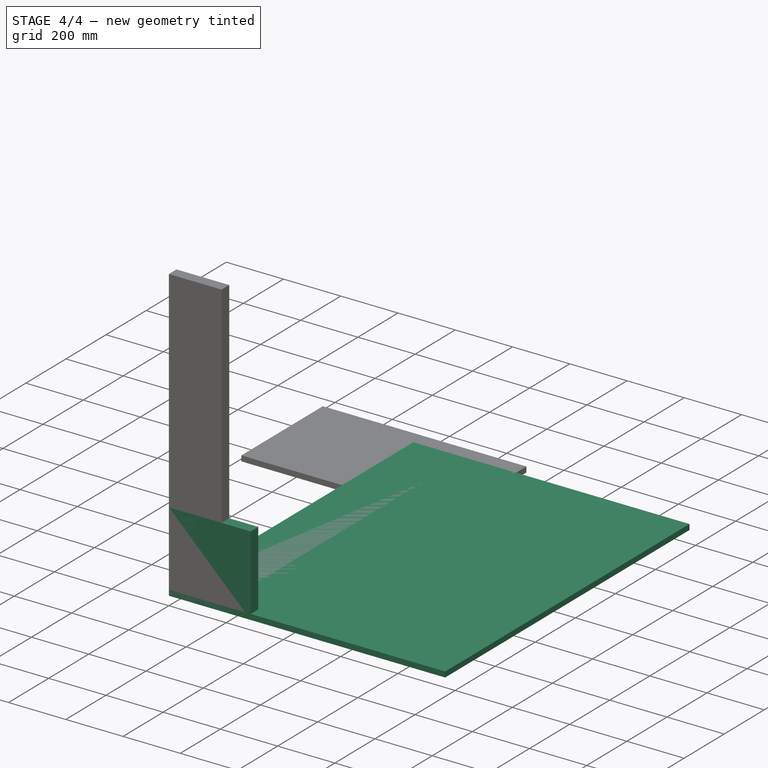
[diagram: stage 4 of 4 — iso view after this stage's code; geometry added in this stage tinted green]
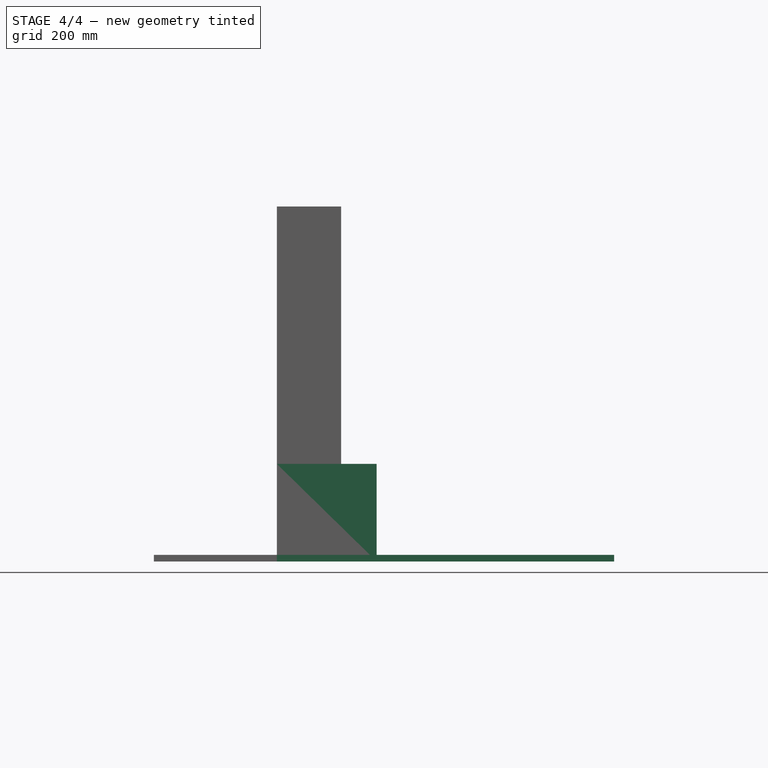
[diagram: stage 4 of 4 — front view after this stage's code; geometry added in this stage tinted green]
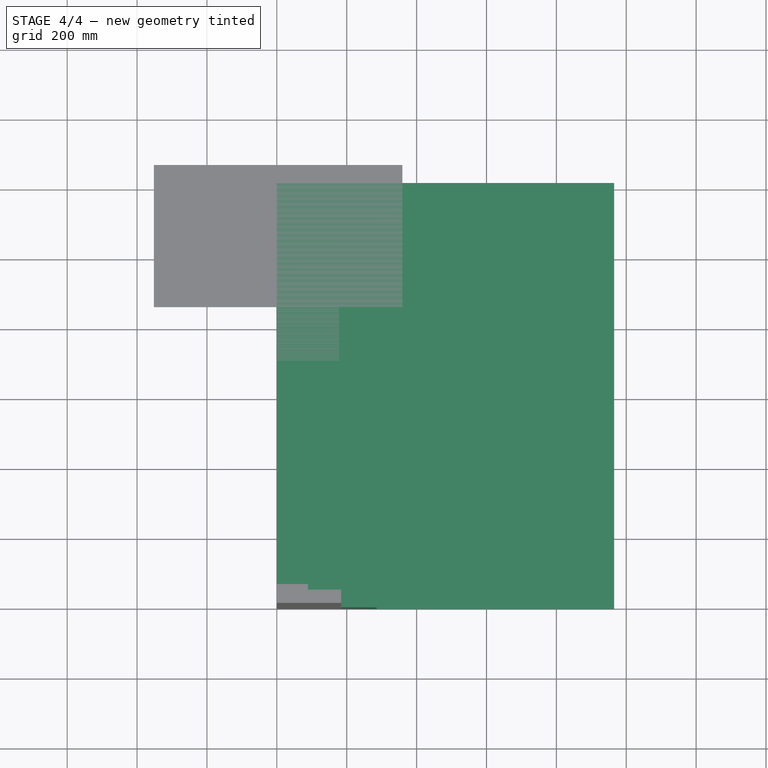
[diagram: stage 4 of 4 — top view after this stage's code; geometry added in this stage tinted green]
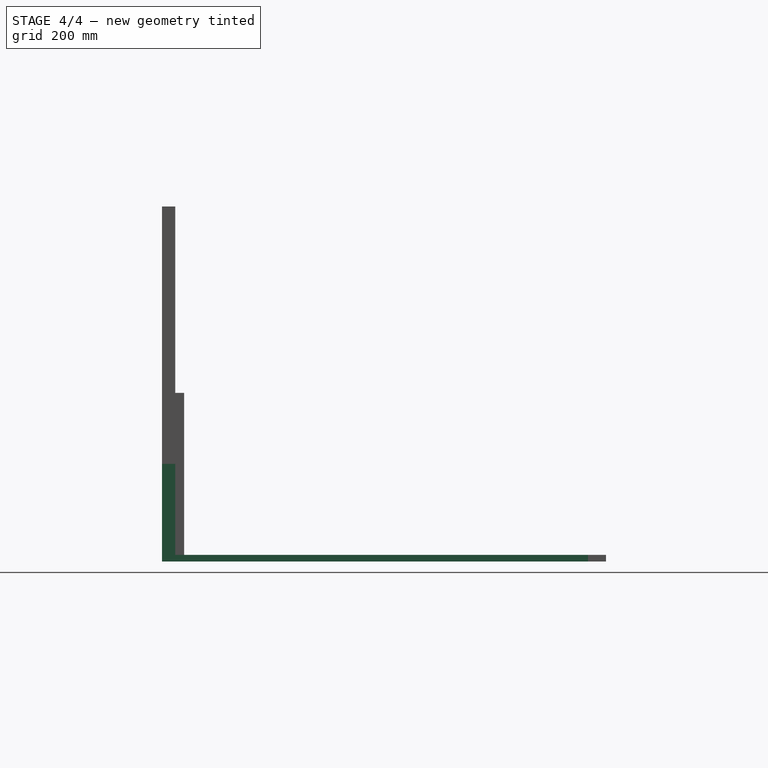
[diagram: stage 4 of 4 — right view after this stage's code; geometry added in this stage tinted green]
FEATURE [Sketcher::SketchObject] Sketch
  ArcFitTolerance = 1e-06
  AttachmentSupport = -> [XY_Plane]
  ExternalBSplineMaxDegree = 5
  ExternalBSplineTolerance = 0.0001
  FixShape = 1
  FullyConstrained = true
  InternalTolerance = 1e-06
  InvalidShape = false
  MakeInternals = false
  MapMode = 5
  Support = -> [XY_Plane]
  TreeRank = 10
  ValidateShape = false
  sketch-geometry (7):
    g0: LineSegment StartX=-254 StartY=0 StartZ=0 EndX=254 EndY=0 EndZ=0
    g1: LineSegment StartX=254 StartY=0 StartZ=0 EndX=254 EndY=609.6 EndZ=0
    g2: LineSegment StartX=254 StartY=609.6 StartZ=0 EndX=-254 EndY=609.6 EndZ=0
    g3: LineSegment StartX=-254 StartY=609.6 StartZ=0 EndX=-254 EndY=0 EndZ=0
    g4: LineSegment StartX=-254 StartY=609.6 StartZ=0 EndX=-279.4 EndY=609.6 EndZ=0
    g5: LineSegment StartX=-279.4 StartY=609.6 StartZ=0 EndX=-279.4 EndY=0 EndZ=0
    g6: LineSegment StartX=-279.4 StartY=0 StartZ=0 EndX=-254 EndY=0 EndZ=0
  constraints (19):
    c: Coincident(g0,g1)
    c: Coincident(g1,g2)
    c: Coincident(g2,g3)
    c: Coincident(g3,g0)
    c: Horizontal(g0)
    c: Horizontal(g2)
    c: Vertical(g1)
    c: Vertical(g3)
    c: Symmetric(g0,g0,g-1)
    c: DistanceY(g3,g3) = 609.6
    c: DistanceX(g0,g0) = 508
    c: Coincident(g4,g2)
    c: Horizontal(g4)
    c: Coincident(g5,g4)
    c: Vertical(g5)
    c: Coincident(g6,g5)
    c: Coincident(g6,g0)
    c: Horizontal(g6)
    c: DistanceX(g6,g6) = 25.4
FEATURE [Sketcher::SketchObject] Sketch001
  ArcFitTolerance = 1e-06
  AttachmentSupport = -> [XZ_Plane]
  ExternalBSplineMaxDegree = 5
  ExternalBSplineTolerance = 0.0001
  ExternalGeometry = -> [Sketch]
  FixShape = 1
  FullyConstrained = true
  InternalTolerance = 1e-06
  InvalidShape = false
  MakeInternals = false
  MapMode = 5
  Placement = pos=(0,0,0) rot=(1,0,0;1.5708rad)
  Support = -> [XZ_Plane]
  TreeRank = 11
  ValidateShape = false
  sketch-geometry (4):
    g0: LineSegment StartX=-266.7 StartY=1016 StartZ=0 EndX=254 EndY=1016 EndZ=0
    g1: LineSegment StartX=254 StartY=1016 StartZ=0 EndX=254 EndY=0 EndZ=0
    g2: LineSegment StartX=254 StartY=0 StartZ=0 EndX=-266.7 EndY=0 EndZ=0
    g3: LineSegment StartX=-266.7 StartY=0 StartZ=0 EndX=-266.7 EndY=1016 EndZ=0
  constraints (11):
    c: Coincident(g0,g1)
    c: Coincident(g1,g2)
    c: Coincident(g2,g3)
    c: Coincident(g3,g0)
    c: Horizontal(g0)
    c: Horizontal(g2)
    c: Vertical(g1)
    c: Vertical(g3)
    c: Coincident(g1,g-3)
    c: DistanceX(g2,g2) = 520.7
    c: DistanceY(g1,g1) = 1016
FEATURE [Sketcher::SketchObject] Sketch002
  ArcFitTolerance = 1e-06
  AttachmentOffset = pos=(0,0,-180) rot=(0,0,1;0rad)
  AttachmentSupport = -> [XY_Plane]
  ExternalBSplineMaxDegree = 5
  ExternalBSplineTolerance = 0.0001
  ExternalGeometry = -> [Sketch,Sketch001]
  FixShape = 1
  FullyConstrained = true
  InternalTolerance = 1e-06
  InvalidShape = false
  MakeInternals = false
  MapMode = 5
  Placement = pos=(0,0,-180) rot=(0,0,1;0rad)
  Support = -> [XY_Plane]
  TreeRank = 12
  ValidateShape = false
  sketch-geometry (24):
    g0: LineSegment StartX=-251.95 StartY=429.6 StartZ=0 EndX=-176.95 EndY=429.6 EndZ=0
    g1: LineSegment StartX=-176.95 StartY=429.6 StartZ=0 EndX=-176.95 EndY=-70.4 EndZ=0
    g2: LineSegment StartX=-176.95 StartY=-70.4 StartZ=0 EndX=-251.95 EndY=-70.4 EndZ=0
    g3: LineSegment StartX=-251.95 StartY=-70.4 StartZ=0 EndX=-251.95 EndY=429.6 EndZ=0
    g4: LineSegment StartX=176.55 StartY=429.6 StartZ=0 EndX=226.55 EndY=429.6 EndZ=0
    g5: LineSegment StartX=226.55 StartY=429.6 StartZ=0 EndX=226.55 EndY=-70.4 EndZ=0
    g6: LineSegment StartX=226.55 StartY=-70.4 StartZ=0 EndX=176.55 EndY=-70.4 EndZ=0
    g7: LineSegment StartX=176.55 StartY=-70.4 StartZ=0 EndX=176.55 EndY=429.6 EndZ=0
    g8: LineSegment [constr] StartX=-176.95 StartY=-70.4 StartZ=0 EndX=176.55 EndY=-70.4 EndZ=0
    g9: LineSegment [constr] StartX=-279.4 StartY=0 StartZ=0 EndX=-279.4 EndY=-70.4 EndZ=0
    g10: LineSegment [constr] StartX=-279.4 StartY=-70.4 StartZ=0 EndX=-251.95 EndY=-70.4 EndZ=0
    g11: LineSegment [constr] StartX=226.55 StartY=-70.4 StartZ=0 EndX=254 EndY=-70.4 EndZ=0
    g12: LineSegment [constr] StartX=254 StartY=-70.4 StartZ=0 EndX=254 EndY=0 EndZ=0
    g13: LineSegment [constr] StartX=-214.45 StartY=429.6 StartZ=0 EndX=201.55 EndY=429.6 EndZ=0
    g14: LineSegment [constr] StartX=201.55 StartY=429.6 StartZ=0 EndX=201.55 EndY=-70.4 EndZ=0
    g15: LineSegment [constr] StartX=201.55 StartY=-70.4 StartZ=0 EndX=-214.45 EndY=-70.4 EndZ=0
    g16: LineSegment [constr] StartX=-214.45 StartY=-70.4 StartZ=0 EndX=-214.45 EndY=429.6 EndZ=0
    g17: LineSegment [constr] StartX=-251.95 StartY=429.6 StartZ=0 EndX=-451.95 EndY=429.6 EndZ=0
    g18: LineSegment StartX=-451.95 StartY=467.7 StartZ=0 EndX=-451.95 EndY=239.1 EndZ=0
    g19: LineSegment StartX=259 StartY=359.6 StartZ=0 EndX=499 EndY=359.6 EndZ=0
    g20: LineSegment StartX=499 StartY=359.6 StartZ=0 EndX=499 EndY=139.6 EndZ=0
    g21: LineSegment StartX=499 StartY=139.6 StartZ=0 EndX=259 EndY=139.6 EndZ=0
    g22: LineSegment StartX=259 StartY=139.6 StartZ=0 EndX=259 EndY=359.6 EndZ=0
    g23: GeomPoint [constr] X=379 Y=249.6 Z=0
  constraints (66):
    c: Coincident(g0,g1)
    c: Coincident(g1,g2)
    c: Coincident(g2,g3)
    c: Coincident(g3,g0)
    c: Horizontal(g0)
    c: Horizontal(g2)
    c: Vertical(g1)
    c: Vertical(g3)
    c: Coincident(g4,g5)
    c: Coincident(g5,g6)
    c: Coincident(g6,g7)
    c: Coincident(g7,g4)
    c: Horizontal(g4)
    c: Horizontal(g6)
    c: Vertical(g5)
    c: Vertical(g7)
    c: DistanceY(g5,g5) = 500
    c: DistanceX(g6,g6) = 50
    c: Equal(g5,g3)
    c: Coincident(g8,g1)
    c: Coincident(g8,g6)
    c: Horizontal(g8)
    c: Coincident(g9,g-3)
    c: Vertical(g9)
    c: Coincident(g10,g9)
    c: Coincident(g10,g2)
    c: Horizontal(g10)
    c: Coincident(g11,g5)
    c: Horizontal(g11)
    c: Coincident(g12,g11)
    c: Coincident(g12,g-4)
    c: Vertical(g12)
    c: Equal(g10,g11)
    c: DistanceX(g2,g2) = 75
    c: Coincident(g13,g14)
    c: Coincident(g14,g15)
    c: Coincident(g15,g16)
    c: Coincident(g16,g13)
    c: Horizontal(g15)
    c: Vertical(g14)
    c: Vertical(g16)
    c: DistanceX(g15,g15) = 416
    c: Symmetric(g0,g0,g13)
    c: Symmetric(g4,g4,g13)
    c: PointOnObject(g15,g2)
    c: DistanceY(g0,g-5) = 180
    c: Coincident(g17,g0)
    c: Horizontal(g17)
    c: DistanceX(g17,g17) = 200
    c: PointOnObject(g17,g18)
    c: Vertical(g18)
    c: DistanceY(g17,g18) = 38.1
    c: DistanceY(g18,g18) = 228.6
    c: Coincident(g19,g20)
    c: Coincident(g20,g21)
    c: Coincident(g21,g22)
    c: Coincident(g22,g19)
    c: Horizontal(g19)
    c: Horizontal(g21)
    c: Vertical(g20)
    c: Vertical(g22)
    c: Symmetric(g21,g19,g23)
    c: DistanceY(g23,g-6) = 360
    c: DistanceX(g21,g21) = 240
    c: DistanceX(g-6,g23) = 125
    c: DistanceY(g22,g22) = 220
FEATURE [Sketcher::SketchObject] Sketch003
  ArcFitTolerance = 1e-06
  AttachmentSupport = -> [Sketch002]
  ExternalBSplineMaxDegree = 5
  ExternalBSplineTolerance = 0.0001
  FixShape = 1
  FullyConstrained = true
  InternalTolerance = 1e-06
  InvalidShape = false
  MakeInternals = false
  MapMode = 5
  Placement = pos=(0,0,-180) rot=(0,0,1;0rad)
  Support = -> [Sketch002]
  TreeRank = 13
  ValidateShape = false
FEATURE [Sketcher::SketchObject] Sketch004
  ArcFitTolerance = 1e-06
  AttachmentOffset = pos=(0,0,-410) rot=(0,0,1;0rad)
  AttachmentSupport = -> [XY_Plane]
  ExternalBSplineMaxDegree = 5
  ExternalBSplineTolerance = 0.0001
  ExternalGeometry = -> [Sketch]
  FixShape = 1
  FullyConstrained = true
  InternalTolerance = 1e-06
  InvalidShape = false
  MakeInternals = false
  MapMode = 5
  Placement = pos=(0,0,-410) rot=(0,0,1;0rad)
  Support = -> [XY_Plane]
  TreeRank = 14
  ValidateShape = false
  sketch-geometry (6):
    g0: Circle CenterX=-12.7 CenterY=304.8 CenterZ=0 NormalX=0 NormalY=0 NormalZ=1 AngleXU=0 Radius=1.25
    g1: LineSegment [constr] StartX=254 StartY=609.6 StartZ=0 EndX=-279.4 EndY=609.6 EndZ=0
    g2: LineSegment [constr] StartX=-279.4 StartY=609.6 StartZ=0 EndX=-279.4 EndY=0 EndZ=0
    g3: LineSegment [constr] StartX=-279.4 StartY=0 StartZ=0 EndX=254 EndY=0 EndZ=0
    g4: LineSegment [constr] StartX=254 StartY=0 StartZ=0 EndX=254 EndY=609.6 EndZ=0
    g5: LineSegment [constr] StartX=-12.7 StartY=609.6 StartZ=0 EndX=-12.7 EndY=0 EndZ=0
  constraints (16):
    c: Diameter(g0) = 2.5
    c: Coincident(g1,g2)
    c: Coincident(g2,g3)
    c: Coincident(g3,g4)
    c: Coincident(g4,g1)
    c: Horizontal(g1)
    c: Horizontal(g3)
    c: Vertical(g2)
    c: Vertical(g4)
    c: Coincident(g1,g-3)
    c: PointOnObject(g2,g-1)
    c: PointOnObject(g-4,g2)
    c: Vertical(g5)
    c: Symmetric(g5,g5,g0)
    c: Symmetric(g1,g1,g5)
    c: PointOnObject(g5,g3)
FEATURE [Sketcher::SketchObject] Sketch005
  ArcFitTolerance = 1e-06
  AttachmentOffset = pos=(0,0,-505) rot=(0,0,1;0rad)
  AttachmentSupport = -> [XY_Plane]
  ExternalBSplineMaxDegree = 5
  ExternalBSplineTolerance = 0.0001
  ExternalGeometry = -> [Sketch]
  FixShape = 1
  FullyConstrained = true
  InternalTolerance = 1e-06
  InvalidShape = false
  MakeInternals = false
  MapMode = 5
  Placement = pos=(0,0,-505) rot=(0,0,1;0rad)
  Support = -> [XY_Plane]
  TreeRank = 14
  ValidateShape = false
  sketch-geometry (6):
    g0: Circle CenterX=-12.7 CenterY=304.8 CenterZ=0 NormalX=0 NormalY=0 NormalZ=1 AngleXU=0 Radius=1.25
    g1: LineSegment [constr] StartX=254 StartY=609.6 StartZ=0 EndX=-279.4 EndY=609.6 EndZ=0
    g2: LineSegment [constr] StartX=-279.4 StartY=609.6 StartZ=0 EndX=-279.4 EndY=0 EndZ=0
    g3: LineSegment [constr] StartX=-279.4 StartY=0 StartZ=0 EndX=254 EndY=0 EndZ=0
    g4: LineSegment [constr] StartX=254 StartY=0 StartZ=0 EndX=254 EndY=609.6 EndZ=0
    g5: LineSegment [constr] StartX=-12.7 StartY=609.6 StartZ=0 EndX=-12.7 EndY=0 EndZ=0
  constraints (16):
    c: Diameter(g0) = 2.5
    c: Coincident(g1,g2)
    c: Coincident(g2,g3)
    c: Coincident(g3,g4)
    c: Coincident(g4,g1)
    c: Horizontal(g1)
    c: Horizontal(g3)
    c: Vertical(g2)
    c: Vertical(g4)
    c: Coincident(g1,g-3)
    c: PointOnObject(g2,g-1)
    c: PointOnObject(g-4,g2)
    c: Vertical(g5)
    c: Symmetric(g5,g5,g0)
    c: Symmetric(g1,g1,g5)
    c: PointOnObject(g5,g3)
FEATURE [Sketcher::SketchObject] Sketch006
  ArcFitTolerance = 1e-06
  AttachmentSupport = -> [Sketch001]
  ExternalBSplineMaxDegree = 5
  ExternalBSplineTolerance = 0.0001
  ExternalGeometry = -> [Sketch001]
  FixShape = 1
  FullyConstrained = true
  InternalTolerance = 1e-06
  InvalidShape = false
  MakeInternals = false
  MapMode = 5
  Placement = pos=(0,0,0) rot=(-1,0,0;1.5708rad)
  Support = -> [Sketch001]
  TreeRank = 15
  ValidateShape = false
  sketch-geometry (2):
    g0: LineSegment [constr] StartX=-266.7 StartY=0 StartZ=0 EndX=-366.7 EndY=0 EndZ=0
    g1: LineSegment StartX=-366.7 StartY=0 StartZ=0 EndX=-366.7 EndY=-60 EndZ=0
  constraints (6):
    c: Coincident(g0,g-3)
    c: PointOnObject(g0,g-1)
    c: DistanceX(g0,g0) = 100
    c: Coincident(g1,g0)
    c: Vertical(g1)
    c: DistanceY(g1,g1) = 60
FEATURE [PartDesign::Body] Body  label="chair"
  AutoGroupSolids = false
  ClaimAllChildren = false
  ExportMode = 0
  FixShape = 1
  Group = -> [Sketch,Sketch001,Sketch002,Sketch003,Sketch004,Sketch005,Sketch006]
  InvalidShape = false
  Origin = -> Origin
  Placement = pos=(0,0,0) rot=(1,0,0;0.087266rad)
  TreeRank = 9
  ValidateShape = false
  _ExportChildren = -> [Sketch,Sketch001,Sketch002,Sketch003,Sketch004,Sketch005,Sketch006]
  _GroupVersion = 1
FEATURE [Sketcher::SketchObject] Sketch007
  ArcFitTolerance = 1e-06
  AttachmentSupport = -> [XY_Plane002]
  ExternalBSplineMaxDegree = 5
  ExternalBSplineTolerance = 0.0001
  FixShape = 1
  FullyConstrained = true
  InternalTolerance = 1e-06
  InvalidShape = false
  MakeInternals = false
  MapMode = 5
  Support = -> [XY_Plane002]
  TreeRank = 47
  ValidateShape = false
  sketch-geometry (6):
    g0: LineSegment StartX=-355.6 StartY=1270 StartZ=0 EndX=355.6 EndY=1270 EndZ=0
    g1: LineSegment StartX=355.6 StartY=1270 StartZ=0 EndX=355.6 EndY=863.6 EndZ=0
    g2: LineSegment StartX=355.6 StartY=863.6 StartZ=0 EndX=-355.6 EndY=863.6 EndZ=0
    g3: LineSegment StartX=-355.6 StartY=863.6 StartZ=0 EndX=-355.6 EndY=1270 EndZ=0
    g4: LineSegment StartX=-12.7 StartY=609.6 StartZ=0 EndX=12.7 EndY=609.6 EndZ=0
    g5: GeomPoint [constr] X=3.1e-14 Y=1066.8 Z=0
  constraints (15):
    c: Coincident(g0,g1)
    c: Coincident(g1,g2)
    c: Coincident(g2,g3)
    c: Coincident(g3,g0)
    c: Horizontal(g0)
    c: Vertical(g1)
    c: Vertical(g3)
    c: Symmetric(g4,g4,g-2)
    c: DistanceX(g4,g4) = 25.4
    c: DistanceY(g-1,g4) = 609.6
    c: Symmetric(g1,g2,g-2)
    c: DistanceX(g2,g2) = 711.2
    c: Symmetric(g0,g2,g5)
    c: DistanceY(g4,g5) = 457.2
    c: DistanceY(g1,g1) = 406.4
FEATURE [PartDesign::Body] Body002  label="deck-pedals"
  AutoGroupSolids = false
  ClaimAllChildren = false
  ExportMode = 0
  FixShape = 1
  Group = -> [Sketch007]
  InvalidShape = false
  Origin = -> Origin002
  Placement = pos=(0,0,-410) rot=(0,0,1;0rad)
  TreeRank = 35
  ValidateShape = false
  _ExportChildren = -> [Sketch007]
  _GroupVersion = 1
FEATURE [Sketcher::SketchObject] Sketch008
  ArcFitTolerance = 1e-06
  AttachmentSupport = -> [XY_Plane004]
  ExternalBSplineMaxDegree = 5
  ExternalBSplineTolerance = 0.0001
  FixShape = 1
  FullyConstrained = true
  InternalTolerance = 1e-06
  InvalidShape = false
  MakeInternals = false
  MapMode = 5
  Support = -> [XY_Plane004]
  TreeRank = 58
  ValidateShape = false
  sketch-geometry (4):
    g0: LineSegment StartX=254 StartY=774.7 StartZ=0 EndX=431.8 EndY=774.7 EndZ=0
    g1: LineSegment StartX=431.8 StartY=774.7 StartZ=0 EndX=431.8 EndY=-241.3 EndZ=0
    g2: LineSegment StartX=431.8 StartY=-241.3 StartZ=0 EndX=254 EndY=-241.3 EndZ=0
    g3: LineSegment StartX=254 StartY=-241.3 StartZ=0 EndX=254 EndY=774.7 EndZ=0
  constraints (12):
    c: Coincident(g0,g1)
    c: Coincident(g1,g2)
    c: Coincident(g2,g3)
    c: Coincident(g3,g0)
    c: Horizontal(g0)
    c: Horizontal(g2)
    c: Vertical(g1)
    c: Vertical(g3)
    c: DistanceX(g-1,g0) = 254
    c: DistanceX(g0,g0) = 177.8
    c: DistanceY(g-1,g0) = 774.7
    c: DistanceY(g1,g1) = 1016
FEATURE [PartDesign::Body] Body004  label="deck-controls-right"
  AutoGroupSolids = false
  ClaimAllChildren = false
  ExportMode = 0
  FixShape = 1
  Group = -> [Sketch008]
  InvalidShape = false
  Origin = -> Origin004
  Placement = pos=(0,0,0.254) rot=(0,0,1;0rad)
  TreeRank = 57
  ValidateShape = false
  _ExportChildren = -> [Sketch008]
  _GroupVersion = 1
FEATURE [Sketcher::SketchObject] Sketch009
  ArcFitTolerance = 1e-06
  AttachmentSupport = -> [XY_Plane005]
  ExternalBSplineMaxDegree = 5
  ExternalBSplineTolerance = 0.0001
  FixShape = 1
  FullyConstrained = true
  InternalTolerance = 1e-06
  InvalidShape = false
  MakeInternals = false
  MapMode = 5
  Support = -> [XY_Plane005]
  TreeRank = 69
  ValidateShape = false
  sketch-geometry (4):
    g0: LineSegment StartX=-520.7 StartY=774.7 StartZ=0 EndX=-342.9 EndY=774.7 EndZ=0
    g1: LineSegment StartX=-342.9 StartY=774.7 StartZ=0 EndX=-342.9 EndY=-241.3 EndZ=0
    g2: LineSegment StartX=-342.9 StartY=-241.3 StartZ=0 EndX=-520.7 EndY=-241.3 EndZ=0
    g3: LineSegment StartX=-520.7 StartY=-241.3 StartZ=0 EndX=-520.7 EndY=774.7 EndZ=0
  constraints (12):
    c: Coincident(g0,g1)
    c: Coincident(g1,g2)
    c: Coincident(g2,g3)
    c: Coincident(g3,g0)
    c: Horizontal(g0)
    c: Horizontal(g2)
    c: Vertical(g1)
    c: Vertical(g3)
    c: DistanceY(g-1,g0) = 774.7
    c: DistanceY(g3,g3) = 1016
    c: DistanceX(g2,g2) = 177.8
    c: DistanceX(g0,g-1) = 342.9
FEATURE [PartDesign::Body] Body005  label="deck-controls-left"
  AutoGroupSolids = false
  ClaimAllChildren = false
  ExportMode = 0
  FixShape = 1
  Group = -> [Sketch009]
  InvalidShape = false
  Origin = -> Origin005
  Placement = pos=(0,0,0.254) rot=(0,0,1;0rad)
  TreeRank = 68
  ValidateShape = false
  _ExportChildren = -> [Sketch009]
  _GroupVersion = 1
FEATURE [Sketcher::SketchObject] Sketch010
  ArcFitTolerance = 1e-06
  AttachmentSupport = -> [XY_Plane001]
  ExternalBSplineMaxDegree = 5
  ExternalBSplineTolerance = 0.0001
  FixShape = 1
  FullyConstrained = true
  InternalTolerance = 1e-06
  InvalidShape = false
  MakeInternals = false
  MapMode = 5
  Support = -> [XY_Plane001]
  TreeRank = 70
  ValidateShape = false
  sketch-geometry (8):
    g0: LineSegment [constr] StartX=-520.7 StartY=774.7 StartZ=0 EndX=520.7 EndY=774.7 EndZ=0
    g1: LineSegment [constr] StartX=520.7 StartY=774.7 StartZ=0 EndX=520.7 EndY=-482.6 EndZ=0
    g2: LineSegment [constr] StartX=520.7 StartY=-482.6 StartZ=0 EndX=-520.7 EndY=-482.6 EndZ=0
    g3: LineSegment [constr] StartX=-520.7 StartY=-482.6 StartZ=0 EndX=-520.7 EndY=774.7 EndZ=0
    g4: LineSegment StartX=444.5 StartY=457.2 StartZ=0 EndX=-520.7 EndY=457.2 EndZ=0
    g5: LineSegment StartX=-520.7 StartY=457.2 StartZ=0 EndX=-520.7 EndY=-254 EndZ=0
    g6: LineSegment StartX=-520.7 StartY=-254 StartZ=0 EndX=444.5 EndY=-254 EndZ=0
    g7: LineSegment StartX=444.5 StartY=-254 StartZ=0 EndX=444.5 EndY=457.2 EndZ=0
  constraints (25):
    c: Coincident(g0,g1)
    c: Coincident(g1,g2)
    c: Coincident(g2,g3)
    c: Coincident(g3,g0)
    c: Horizontal(g2)
    c: Vertical(g1)
    c: Vertical(g3)
    c: DistanceX(g0,g0) = 1041.4
    c: Symmetric(g0,g0,g-2)
    c: Coincident(g4,g5)
    c: Coincident(g5,g6)
    c: Coincident(g6,g7)
    c: Coincident(g7,g4)
    c: Horizontal(g4)
    c: Horizontal(g6)
    c: Vertical(g5)
    c: Vertical(g7)
    c: DistanceX(g4,g4) = 965.2
    c: DistanceX(g4,g-1) = 520.7
    c: DistanceY(g-1,g4) = 457.2
    c: DistanceY(g6,g4) = 711.2
    c: DistanceY(g-1,g0) = 774.7
    c: DistanceY(g2,g0) = 1257.3
    c: DistanceY(g2,g-1) = 482.6
    c: DistanceY(g6,g-1) = 254
FEATURE [PartDesign::Body] Body001  label="deck-chair"
  AutoGroupSolids = false
  ClaimAllChildren = false
  ExportMode = 0
  FixShape = 1
  Group = -> [Sketch010]
  InvalidShape = false
  Origin = -> Origin001
  Placement = pos=(0,0,-180) rot=(0,0,1;0rad)
  TreeRank = 25
  ValidateShape = false
  _ExportChildren = -> [Sketch010]
  _GroupVersion = 1
FEATURE [Part::SubShapeBinder] Import  label="Import(Sketch007)"
  BindCopyOnChange = 0
  BindMode = 0
  ClaimChildren = false
  Context = -> Body003 [Import.]
  EdgeTolerance = 1e-06
  FillStyle = 0
  FixShape = 1
  Fuse = false
  InvalidShape = false
  MakeFace = false
  MergeEdges = true
  OffsetFill = false
  OffsetIntersection = false
  OffsetJoinType = 0
  OffsetOpenResult = false
  Outline = false
  PartialLoad = false
  Relative = true
  SplitEdges = false
  Support = -> [Body002[Sketch007.]]
  TightBound = false
  TreeRank = 72
  ValidateShape = false
  _Version = 8
FEATURE [Sketcher::SketchObject] Sketch011
  ArcFitTolerance = 1e-06
  AttachmentSupport = -> [XY_Plane003]
  ExternalBSplineMaxDegree = 5
  ExternalBSplineTolerance = 0.0001
  ExternalGeometry = -> [Import]
  FixShape = 1
  FullyConstrained = true
  InternalTolerance = 1e-06
  InvalidShape = false
  MakeInternals = false
  MapMode = 5
  Support = -> [XY_Plane003]
  TreeRank = 71
  ValidateShape = false
  sketch-geometry (5):
    g0: LineSegment StartX=-482.6 StartY=609.6 StartZ=0 EndX=482.6 EndY=609.6 EndZ=0
    g1: LineSegment StartX=482.6 StartY=609.6 StartZ=0 EndX=482.6 EndY=-330.2 EndZ=0
    g2: LineSegment StartX=482.6 StartY=-330.2 StartZ=0 EndX=-482.6 EndY=-330.2 EndZ=0
    g3: LineSegment StartX=-482.6 StartY=-330.2 StartZ=0 EndX=-482.6 EndY=609.6 EndZ=0
    g4: LineSegment [constr] StartX=482.6 StartY=-330.2 StartZ=0 EndX=-482.6 EndY=-330.2 EndZ=0
  constraints (17):
    c: Coincident(g0,g1)
    c: Coincident(g1,g2)
    c: Coincident(g2,g3)
    c: Coincident(g3,g0)
    c: Horizontal(g2)
    c: Vertical(g1)
    c: Vertical(g3)
    c: Symmetric(g0,g0,g-2)
    c: DistanceX(g0,g0) = 965.2
    c: DistanceY(g-1,g0) = 609.6
    c: DistanceY(g1,g-1) = 330.2
    c: PointOnObject(g4,g1)
    c: PointOnObject(g4,g3)
    c: Horizontal(g4)
    c: DistanceY(g4,g-1) = 330.2
    c: DistanceY(g1,g0) = 939.8
    c: DistanceY(g1,g-3) = 1600.2
FEATURE [PartDesign::Body] Body003  label="deck-floor"
  AutoGroupSolids = false
  ClaimAllChildren = false
  ExportMode = 0
  FixShape = 1
  Group = -> [Sketch011,Import]
  InvalidShape = false
  Origin = -> Origin003
  Placement = pos=(0,0,-500) rot=(0,0,1;0rad)
  TreeRank = 45
  ValidateShape = false
  _ExportChildren = -> [Sketch011,Import]
  _GroupVersion = 1
FEATURE [App::FeaturePython] Constraints  # WARN: FeaturePython — macro-defined, semantics opaque (R4)
  TreeRank = 74
  _LinkVersion = 1
  _Version = 1
FEATURE [App::FeaturePython] Elements  # WARN: FeaturePython — macro-defined, semantics opaque (R4)
  TreeRank = 75
  _LinkVersion = 1
FEATURE [Part::FeaturePython] Parts  # WARN: FeaturePython — macro-defined, semantics opaque (R4)
  FixShape = 1
  Group = -> [Body,Body001,Body002,Body003,Body004,Body005]
  GroupMode = 0
  InvalidShape = false
  TreeRank = 76
  ValidateShape = false
  _LinkVersion = 1
FEATURE [Part::FeaturePython] Assembly  label="SPECIFICATION-flightDeck-Assembly"  # WARN: FeaturePython — macro-defined, semantics opaque (R4)
  AutoRelax = true
  BuildShape = 0
  FixShape = 1
  Freeze = false
  Group = -> [Constraints,Elements,Parts]
  InvalidShape = false
  TreeRank = 73
  ValidateShape = false
  Verbose = false
  _LinkVersion = 1
  _SolverType = 1
  _Version = 1
FEATURE [App::FeaturePython] Constraints001  # WARN: FeaturePython — macro-defined, semantics opaque (R4)
  TreeRank = 88
  _LinkVersion = 1
  _Version = 1
FEATURE [App::FeaturePython] Elements001  # WARN: FeaturePython — macro-defined, semantics opaque (R4)
  TreeRank = 89
  _LinkVersion = 1
FEATURE [Sketcher::SketchObject] Sketch012
  ArcFitTolerance = 1e-06
  AttachmentSupport = -> [XY_Plane006]
  ExternalBSplineMaxDegree = 5
  ExternalBSplineTolerance = 0.0001
  FixShape = 1
  FullyConstrained = true
  InternalTolerance = 1e-06
  InvalidShape = false
  MakeInternals = false
  MapMode = 5
  Support = -> [XY_Plane006]
  TreeRank = 92
  ValidateShape = false
  sketch-geometry (4):
    g0: LineSegment StartX=0 StartY=0 StartZ=0 EndX=285.75 EndY=0 EndZ=0
    g1: LineSegment StartX=285.75 StartY=0 StartZ=0 EndX=285.75 EndY=38.1 EndZ=0
    g2: LineSegment StartX=285.75 StartY=38.1 StartZ=0 EndX=0 EndY=38.1 EndZ=0
    g3: LineSegment StartX=0 StartY=38.1 StartZ=0 EndX=0 EndY=0 EndZ=0
  constraints (11):
    c: Coincident(g0,g1)
    c: Coincident(g1,g2)
    c: Coincident(g2,g3)
    c: Coincident(g3,g0)
    c: Horizontal(g0)
    c: Horizontal(g2)
    c: Vertical(g1)
    c: Vertical(g3)
    c: Coincident(g0,g-1)
    c: DistanceX(g0,g0) = 285.75
    c: DistanceY(g3,g3) = 38.1
FEATURE [PartDesign::Pad] Pad
  AddSubType = 0
  AlongSketchNormal = false
  AutoTaperInnerAngle = true
  CheckUpToFaceLimits = true
  ClaimChildren = false
  Direction = (0,0,1)
  Fit = 0
  FitJoin = 0
  FixShape = 1
  InnerFit = 0
  InnerFitJoin = 0
  InvalidShape = false
  Length = 279.4
  Length2 = 100
  Linearize = true
  NewSolid = false
  Profile = -> Sketch012
  Refine = true
  Suppress = false
  TaperInnerAngle = 0
  TaperInnerAngleRev = 0
  TreeRank = 93
  Type = 0
  ValidateShape = false
  _ProfileBasedVersion = 1
FEATURE [PartDesign::Body] Body006  label="timber-floorToChair"
  AutoGroupSolids = false
  ClaimAllChildren = false
  ExportMode = 0
  FixShape = 1
  Group = -> [Sketch012,Pad]
  InvalidShape = false
  Origin = -> Origin006
  Tip = -> Pad
  TreeRank = 94
  ValidateShape = false
  _ExportChildren = -> [Pad]
  _GroupVersion = 1
FEATURE [App::Link] Link  label="Link(timber-floorToChair)"
  AutoLinkLabel = true
  AutoPlacement = true
  LinkPlacement = pos=(-342.604,179.621,-0.000152588) rot=(0,0,-1;0.785398rad)
  LinkedObject = -> Body006
  Placement = pos=(-342.604,179.621,-0.000152588) rot=(0,0,-1;0.785398rad)
  SyncGroupVisibility = false
  TreeRank = 95
  _LinkVersion = 1
FEATURE [App::Link] Link001  label="Link001(timber-floorToChair)"
  AutoLinkLabel = true
  AutoPlacement = true
  LinkPlacement = pos=(-31.75,-3.05176e-05,0) rot=(0,0,1;0rad)
  LinkedObject = -> Body006
  Placement = pos=(-31.75,-3.05176e-05,0) rot=(0,0,1;0rad)
  SyncGroupVisibility = false
  TreeRank = 96
  _LinkVersion = 1
FEATURE [App::Link] Link002  label="Link002(timber-floorToChair)"
  AutoLinkLabel = true
  AutoPlacement = true
  LinkPlacement = pos=(356.456,-17.3171,1.2207e-05) rot=(0,0,1;0.785398rad)
  LinkedObject = -> Body006
  Placement = pos=(356.456,-17.3171,1.2207e-05) rot=(0,0,1;0.785398rad)
  SyncGroupVisibility = false
  TreeRank = 97
  _LinkVersion = 1
FEATURE [App::FeaturePython] Constraints002  # WARN: FeaturePython — macro-defined, semantics opaque (R4)
  TreeRank = 99
  _LinkVersion = 1
  _Version = 1
FEATURE [App::FeaturePython] Elements002  # WARN: FeaturePython — macro-defined, semantics opaque (R4)
  TreeRank = 100
  _LinkVersion = 1
FEATURE [App::Link] Link003  label="Link003(timber-floorToChair)"
  AutoLinkLabel = true
  AutoPlacement = true
  LinkPlacement = pos=(-38.1,609.6,6.10352e-05) rot=(0,0,1;0rad)
  LinkedObject = -> Body006
  Placement = pos=(-38.1,609.6,6.10352e-05) rot=(0,0,1;0rad)
  SyncGroupVisibility = false
  TreeRank = 103
  _LinkVersion = 1
FEATURE [Sketcher::SketchObject] Sketch013
  ArcFitTolerance = 1e-06
  AttachmentSupport = -> [XY_Plane007]
  ExternalBSplineMaxDegree = 5
  ExternalBSplineTolerance = 0.0001
  FixShape = 1
  FullyConstrained = true
  InternalTolerance = 1e-06
  InvalidShape = false
  MakeInternals = false
  MapMode = 5
  Support = -> [XY_Plane007]
  TreeRank = 114
  ValidateShape = false
  sketch-geometry (4):
    g0: LineSegment StartX=0 StartY=0 StartZ=0 EndX=965.2 EndY=0 EndZ=0
    g1: LineSegment StartX=965.2 StartY=0 StartZ=0 EndX=965.2 EndY=711.2 EndZ=0
    g2: LineSegment StartX=965.2 StartY=711.2 StartZ=0 EndX=0 EndY=711.2 EndZ=0
    g3: LineSegment StartX=0 StartY=711.2 StartZ=0 EndX=0 EndY=0 EndZ=0
  constraints (11):
    c: Coincident(g0,g1)
    c: Coincident(g1,g2)
    c: Coincident(g2,g3)
    c: Coincident(g3,g0)
    c: Horizontal(g0)
    c: Horizontal(g2)
    c: Vertical(g1)
    c: Vertical(g3)
    c: Coincident(g0,g-1)
    c: DistanceX(g0,g0) = 965.2
    c: DistanceY(g3,g3) = 711.2
FEATURE [PartDesign::Pad] Pad001
  AddSubType = 0
  AlongSketchNormal = false
  AutoTaperInnerAngle = true
  CheckUpToFaceLimits = true
  ClaimChildren = false
  Direction = (0,0,1)
  Fit = 0
  FitJoin = 0
  FixShape = 1
  InnerFit = 0
  InnerFitJoin = 0
  InvalidShape = false
  Length = 19.05
  Length2 = 100
  Linearize = true
  NewSolid = false
  Profile = -> Sketch013
  Refine = true
  Suppress = false
  TaperInnerAngle = 0
  TaperInnerAngleRev = 0
  TreeRank = 115
  Type = 0
  ValidateShape = false
  _ProfileBasedVersion = 1
FEATURE [PartDesign::Body] Body007  label="panel-chairDeck"
  AutoGroupSolids = false
  ClaimAllChildren = false
  ExportMode = 0
  FixShape = 1
  Group = -> [Sketch013,Pad001]
  InvalidShape = false
  Origin = -> Origin007
  Placement = pos=(-393.7,-50.7998,279.4) rot=(0,0,1;0rad)
  Tip = -> Pad001
  TreeRank = 113
  ValidateShape = false
  _ExportChildren = -> [Pad001]
  _GroupVersion = 1
FEATURE [Sketcher::SketchObject] Sketch014
  ArcFitTolerance = 1e-06
  AttachmentSupport = -> [XY_Plane008]
  ExternalBSplineMaxDegree = 5
  ExternalBSplineTolerance = 0.0001
  FixShape = 1
  FullyConstrained = true
  InternalTolerance = 1e-06
  InvalidShape = false
  MakeInternals = false
  MapMode = 5
  Support = -> [XY_Plane008]
  TreeRank = 126
  ValidateShape = false
  sketch-geometry (4):
    g0: LineSegment StartX=0 StartY=0 StartZ=0 EndX=965.2 EndY=0 EndZ=0
    g1: LineSegment StartX=965.2 StartY=0 StartZ=0 EndX=965.2 EndY=1219.2 EndZ=0
    g2: LineSegment StartX=965.2 StartY=1219.2 StartZ=0 EndX=0 EndY=1219.2 EndZ=0
    g3: LineSegment StartX=0 StartY=1219.2 StartZ=0 EndX=0 EndY=0 EndZ=0
  constraints (11):
    c: Coincident(g0,g1)
    c: Coincident(g1,g2)
    c: Coincident(g2,g3)
    c: Coincident(g3,g0)
    c: Horizontal(g0)
    c: Horizontal(g2)
    c: Vertical(g1)
    c: Vertical(g3)
    c: Coincident(g0,g-1)
    c: DistanceX(g0,g0) = 965.2
    c: DistanceY(g3,g3) = 1219.2
FEATURE [PartDesign::Pad] Pad002
  AddSubType = 0
  AlongSketchNormal = false
  AutoTaperInnerAngle = true
  CheckUpToFaceLimits = true
  ClaimChildren = false
  Direction = (0,0,1)
  Fit = 0
  FitJoin = 0
  FixShape = 1
  InnerFit = 0
  InnerFitJoin = 0
  InvalidShape = false
  Length = 19.05
  Length2 = 100
  Linearize = true
  NewSolid = false
  Profile = -> Sketch014
  Refine = true
  Suppress = false
  TaperInnerAngle = 0
  TaperInnerAngleRev = 0
  TreeRank = 127
  Type = 0
  ValidateShape = false
  _ProfileBasedVersion = 1
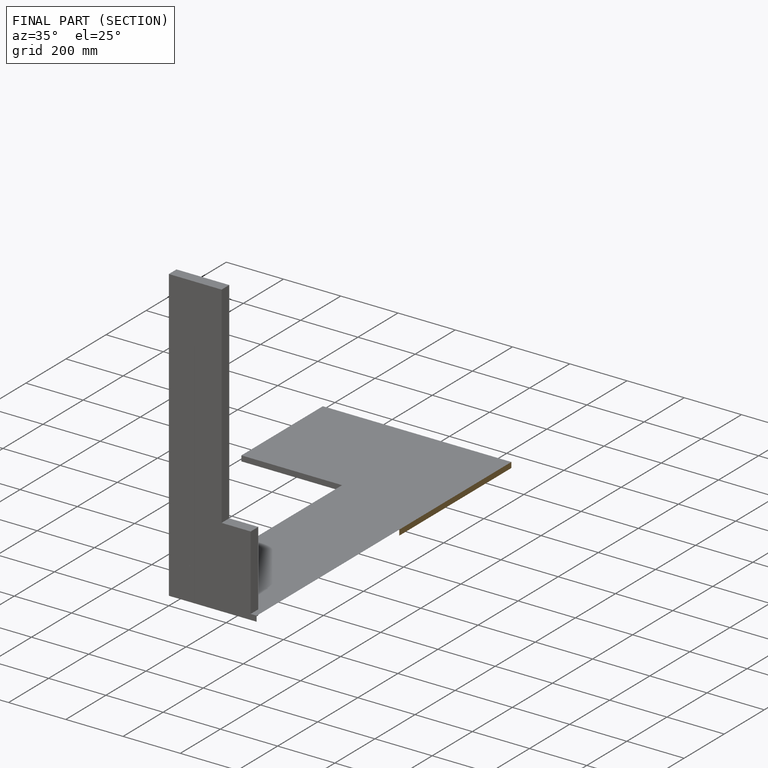
[diagram: finished part — half-section view (interior)]
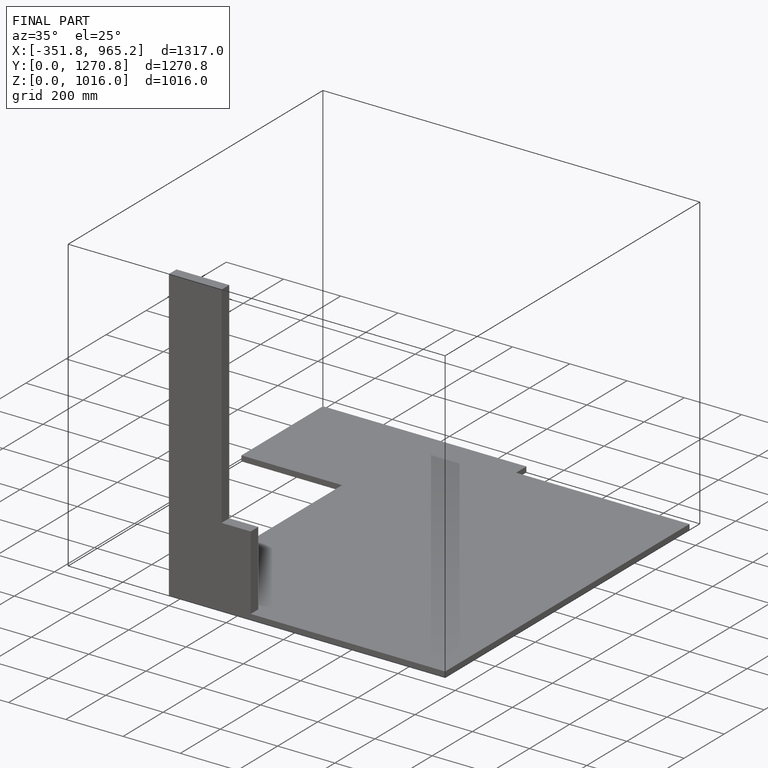
[diagram: finished part — iso view with bounding-box wireframe]
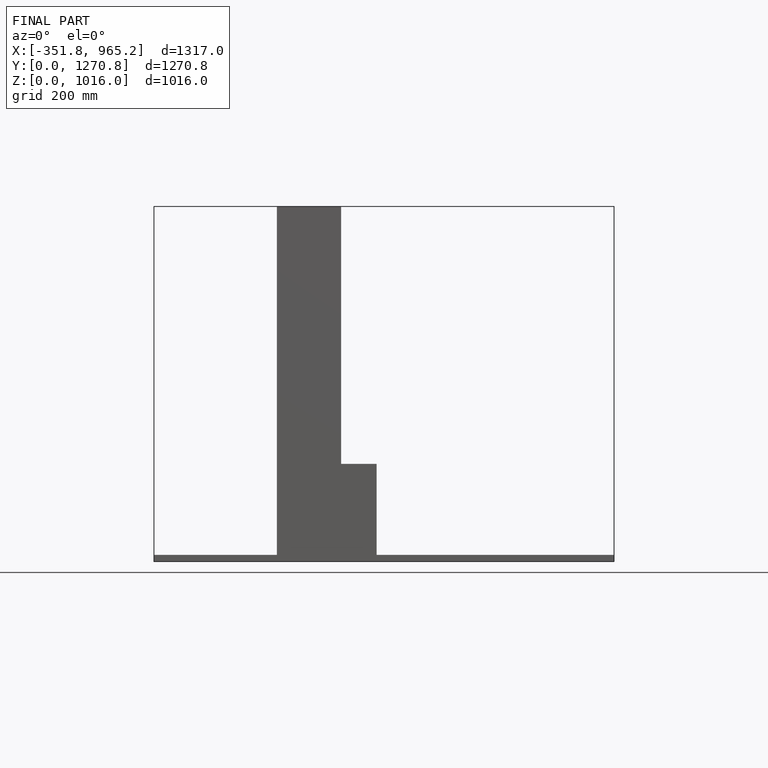
[diagram: finished part — front view with bounding-box wireframe]
